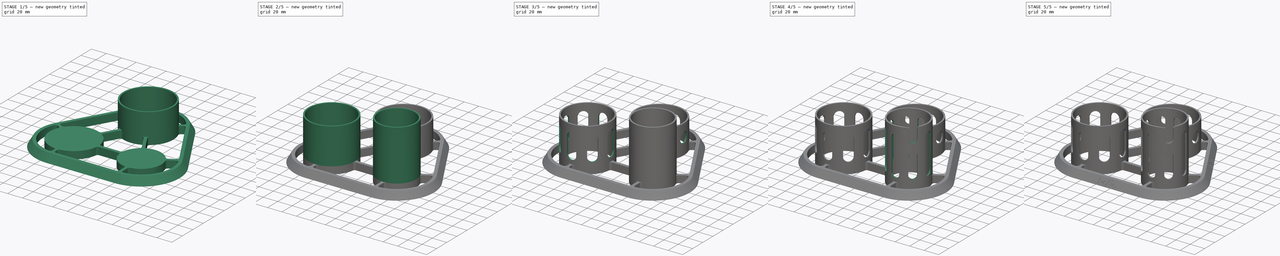
[diagram: build sequence overview — one tinted view per stage of 5, left to right]
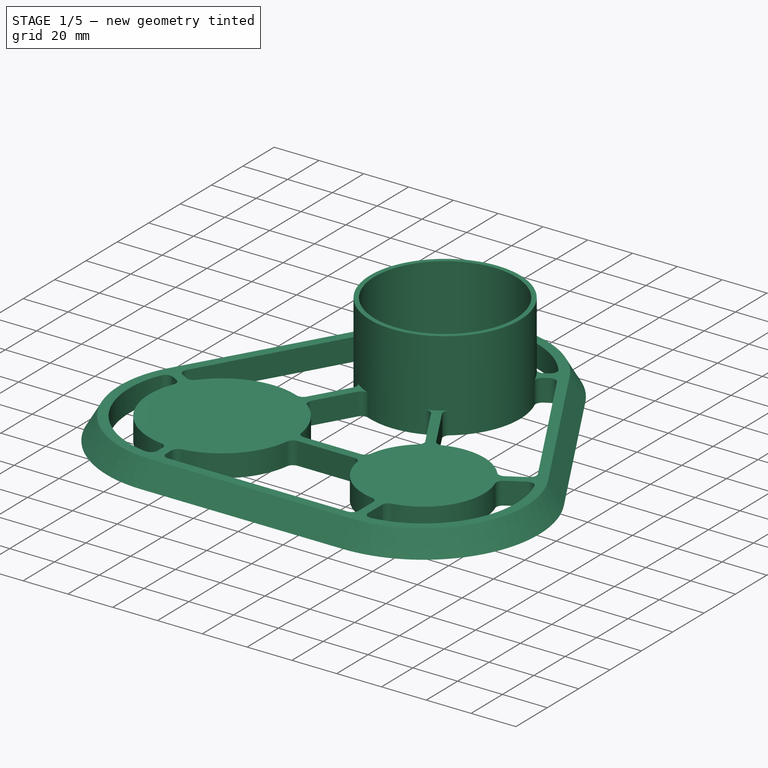
[diagram: stage 1 of 5 — iso view after this stage's code; geometry added in this stage tinted green]
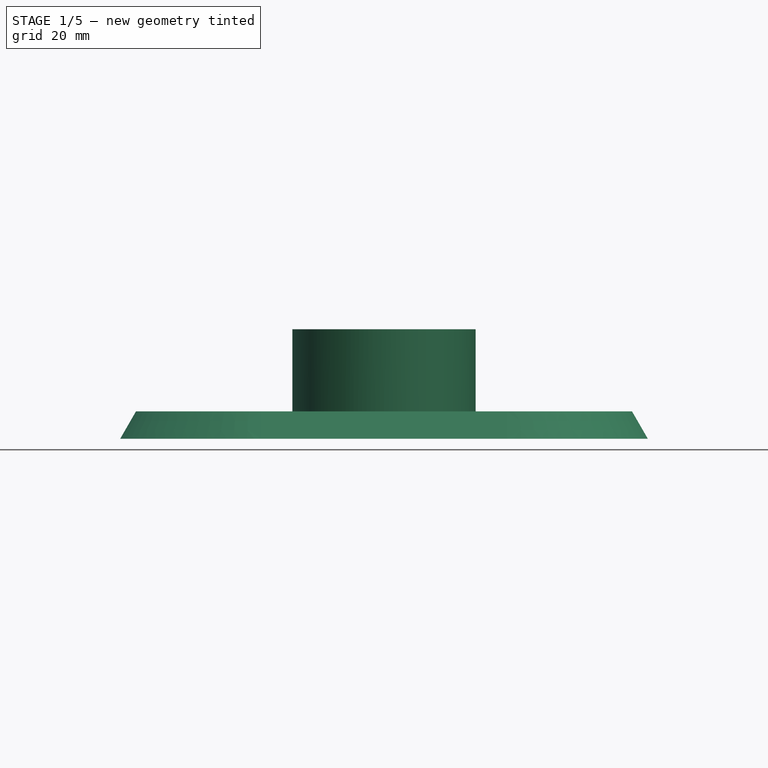
[diagram: stage 1 of 5 — front view after this stage's code; geometry added in this stage tinted green]
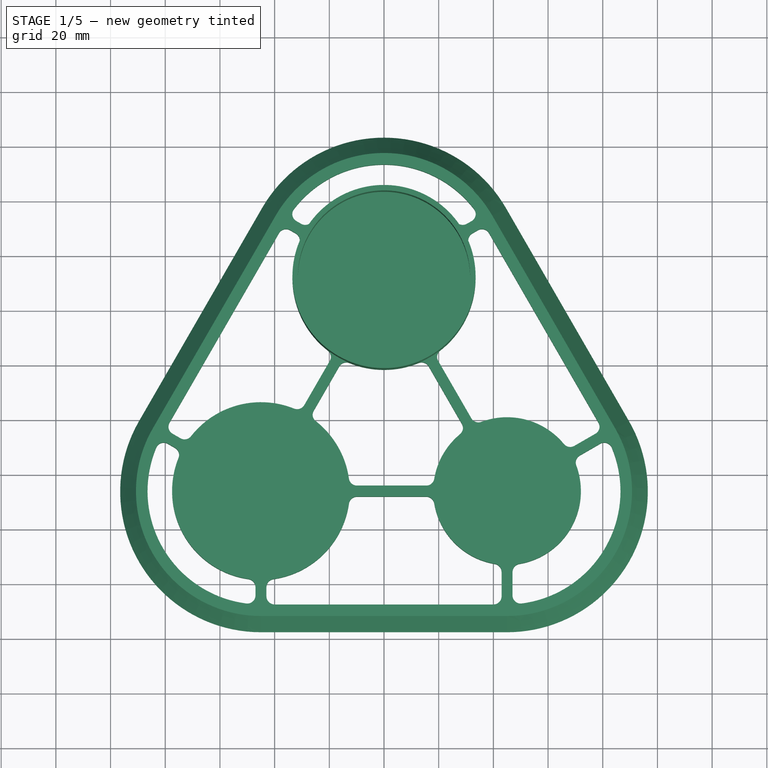
[diagram: stage 1 of 5 — top view after this stage's code; geometry added in this stage tinted green]
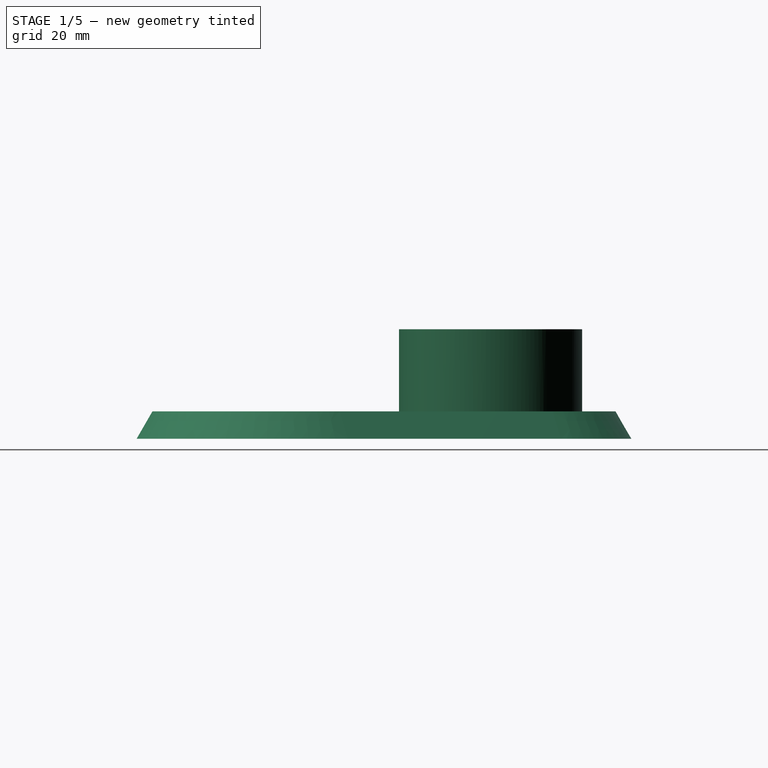
[diagram: stage 1 of 5 — right view after this stage's code; geometry added in this stage tinted green]
FCSTD DOCUMENT  (FreeCAD 1.0R38806 (Git))
Label: pado base 5
License: All rights reserved
LicenseURL: http://en.wikipedia.org/wiki/All_rights_reserved
objects: Sketcher::SketchObject×14, PartDesign::Pocket×7, Part::Part2DObjectPython×5, PartDesign::Pad×4, PartDesign::PolarPattern×4, PartDesign::SubShapeBinder×3, App::VarSet×1, PartDesign::SubtractivePipe×1, PartDesign::Body×1
note: 81 computed .brp shape members not serialized (recipe doc carries the construction recipe); baked Part::Feature solids carry a one-line shape summary decoded from their .brp

FEATURE [App::VarSet] VarSet
  BaseHeight = 10
  HoleMarginBottom = 5
  HoleMarginTop = 10
  Offset = -2
  WallThickness = 2
  h1 = 40
  h2 = 60
  h3 = 80
FEATURE [Sketcher::SketchObject] Sketch
  ArcFitTolerance = 1e-06
  AttachmentSupport = -> [XY_Plane001]
  FullyConstrained = true
  MakeInternals = false
  MapMode = 5
  sketch-geometry (11):
    g0: LineSegment [constr] StartX=0 StartY=51.9615 StartZ=0 EndX=-45 EndY=-25.9808 EndZ=0
    g1: LineSegment [constr] StartX=-45 StartY=-25.9808 StartZ=0 EndX=45 EndY=-25.9808 EndZ=0
    g2: LineSegment [constr] StartX=45 StartY=-25.9808 StartZ=0 EndX=0 EndY=51.9615 EndZ=0
    g3: LineSegment [constr] StartX=0 StartY=0 StartZ=0 EndX=-45 EndY=-25.9808 EndZ=0
    g4: LineSegment [constr] StartX=0 StartY=0 StartZ=0 EndX=0 EndY=51.9615 EndZ=0
    g5: Circle CenterX=0 CenterY=51.9615 CenterZ=0 NormalX=0 NormalY=0 NormalZ=1 AngleXU=0 Radius=41
    g6: Circle CenterX=-45 CenterY=-25.9808 CenterZ=0 NormalX=0 NormalY=0 NormalZ=1 AngleXU=0 Radius=35.5
    g7: Circle CenterX=45 CenterY=-25.9808 CenterZ=0 NormalX=0 NormalY=0 NormalZ=1 AngleXU=0 Radius=33.75
    g8: Circle CenterX=0 CenterY=51.9615 CenterZ=0 NormalX=0 NormalY=0 NormalZ=1 AngleXU=0 Radius=35.5
    g9: Circle CenterX=-45 CenterY=-25.9808 CenterZ=0 NormalX=0 NormalY=0 NormalZ=1 AngleXU=0 Radius=34.5
    g10: Circle CenterX=45 CenterY=-25.9808 CenterZ=0 NormalX=0 NormalY=0 NormalZ=1 AngleXU=0 Radius=29
  constraints (25):
    c: PointOnObject(g0,g-2)
    c: Coincident(g0,g1)
    c: Horizontal(g1)
    c: Coincident(g1,g2)
    c: Coincident(g2,g0)
    c: Equal(g0,g2)
    c: Equal(g2,g1)
    c: Coincident(g3,g0)
    c: Coincident(g4,g3)
    c: Coincident(g4,g0)
    c: Coincident(g3,g-1)
    c: Equal(g3,g4)
    c: Diameter(g5) = 82
    c: Coincident(g5,g0)
    c: Diameter(g6) = 71
    c: Coincident(g6,g0)
    c: Diameter(g7) = 67.5
    c: Coincident(g7,g1)
    c: Distance(g2,g2) = 90
    c: Diameter(g8) = 71
    c: Coincident(g8,g0)
    c: Diameter(g9) = 69
    c: Coincident(g9,g0)
    c: Diameter(g10) = 58
    c: Coincident(g10,g1)
FEATURE [Sketcher::SketchObject] Sketch002
  ArcFitTolerance = 1e-06
  AttachmentSupport = -> [XY_Plane001]
  ExternalGeometry = -> [Sketch]
  FullyConstrained = true
  MakeInternals = false
  MapMode = 5
  sketch-geometry (7):
    g0: LineSegment StartX=89.1673 StartY=-0.480762 StartZ=0 EndX=44.1673 EndY=77.4615 EndZ=0
    g1: LineSegment StartX=-44.1673 StartY=77.4615 StartZ=0 EndX=-89.1673 EndY=-0.480762 EndZ=0
    g2: LineSegment StartX=-45 StartY=-76.9808 StartZ=0 EndX=45 EndY=-76.9808 EndZ=0
    g3: ArcOfCircle CenterX=0 CenterY=51.9615 CenterZ=0 NormalX=0 NormalY=0 NormalZ=1 AngleXU=0 Radius=51 StartAngle=0.523599 EndAngle=2.61799
    g4: ArcOfCircle CenterX=-45 CenterY=-25.9808 CenterZ=0 NormalX=0 NormalY=0 NormalZ=1 AngleXU=0 Radius=51 StartAngle=2.61799 EndAngle=4.71239
    g5: ArcOfCircle CenterX=45 CenterY=-25.9808 CenterZ=0 NormalX=0 NormalY=0 NormalZ=1 AngleXU=0 Radius=51 StartAngle=4.71239 EndAngle=6.80678
    g6: LineSegment [constr] StartX=0 StartY=51.9615 StartZ=0 EndX=35.507 EndY=72.4615 EndZ=0
  constraints (16):
    c: Tangent(g1,g3) = -1.5708
    c: Tangent(g0,g3) = -1.5708
    c: Tangent(g1,g4) = -1.5708
    c: Tangent(g2,g4) = -1.5708
    c: Tangent(g2,g5) = -1.5708
    c: Tangent(g0,g5) = -1.5708
    c: Equal(g1,g0)
    c: Equal(g0,g2)
    c: Equal(g3,g4)
    c: Equal(g4,g5)
    c: Coincident(g3,g-3)
    c: Coincident(g4,g-4)
    c: Coincident(g6,g3)
    c: PointOnObject(g6,g-3)
    c: PointOnObject(g0,g6)
    c: Distance(g6,g0) = 10
FEATURE [PartDesign::SubShapeBinder] Binder
  BindCopyOnChange = 0
  BindMode = 0
  ClaimChildren = false
  Context = -> Body [Binder.]
  Fuse = false
  MakeFace = true
  Offset = -2
  OffsetFill = false
  OffsetIntersection = false
  OffsetJoinType = 0
  OffsetOpenResult = false
  PartialLoad = false
  Relative = true
  Support = -> [Sketch[Edge4]]
  _Version = 2
  expr: Offset = VarSet.Offset
FEATURE [PartDesign::SubShapeBinder] Binder001
  BindCopyOnChange = 0
  BindMode = 0
  ClaimChildren = false
  Context = -> Body [Binder001.]
  Fuse = false
  MakeFace = true
  Offset = -2
  OffsetFill = false
  OffsetIntersection = false
  OffsetJoinType = 0
  OffsetOpenResult = false
  PartialLoad = false
  Relative = true
  Support = -> [Sketch[Edge5]]
  _Version = 2
  expr: Offset = VarSet.Offset
FEATURE [PartDesign::SubShapeBinder] Binder002
  BindCopyOnChange = 0
  BindMode = 0
  ClaimChildren = false
  Context = -> Body [Binder002.]
  Fuse = false
  MakeFace = true
  Offset = -2
  OffsetFill = false
  OffsetIntersection = false
  OffsetJoinType = 0
  OffsetOpenResult = false
  PartialLoad = false
  Relative = true
  Support = -> [Sketch[Edge6]]
  _Version = 2
  expr: Offset = VarSet.Offset
FEATURE [Sketcher::SketchObject] Sketch004
  ArcFitTolerance = 1e-06
  AttachmentSupport = -> [XY_Plane001]
  ExternalGeometry = -> [Binder]
  FullyConstrained = true
  MakeInternals = false
  MapMode = 5
  expr: Constraints[7] = VarSet.WallThickness
  sketch-geometry (3):
    g0: Circle CenterX=0 CenterY=51.9615 CenterZ=0 NormalX=0 NormalY=0 NormalZ=1 AngleXU=0 Radius=33.5
    g1: Circle CenterX=0 CenterY=51.9615 CenterZ=0 NormalX=0 NormalY=0 NormalZ=1 AngleXU=0 Radius=31.5
    g2: LineSegment [constr] StartX=31.5 StartY=51.9615 StartZ=0 EndX=33.5 EndY=51.9615 EndZ=0
  constraints (8):
    c: Coincident(g0,g-3)
    c: Equal(g0,g-3)
    c: Coincident(g1,g0)
    c: PointOnObject(g2,g1)
    c: PointOnObject(g2,g0)
    c: Horizontal(g2)
    c: PointOnObject(g0,g2)
    c: Distance(g2,g2) = 2
FEATURE [Sketcher::SketchObject] Sketch005
  ArcFitTolerance = 1e-06
  AttachmentSupport = -> [XY_Plane001]
  ExternalGeometry = -> [Binder001]
  FullyConstrained = true
  MakeInternals = false
  MapMode = 5
  expr: Constraints[7] = VarSet.WallThickness
  sketch-geometry (3):
    g0: Circle CenterX=-45 CenterY=-25.9808 CenterZ=0 NormalX=0 NormalY=0 NormalZ=1 AngleXU=0 Radius=32.5
    g1: Circle CenterX=-45 CenterY=-25.9808 CenterZ=0 NormalX=0 NormalY=0 NormalZ=1 AngleXU=0 Radius=30.5
    g2: LineSegment [constr] StartX=-14.5 StartY=-25.9808 StartZ=0 EndX=-12.5 EndY=-25.9808 EndZ=0
  constraints (8):
    c: Coincident(g0,g-3)
    c: Equal(g0,g-3)
    c: Coincident(g1,g0)
    c: PointOnObject(g2,g1)
    c: PointOnObject(g2,g0)
    c: Horizontal(g2)
    c: PointOnObject(g0,g2)
    c: Distance(g2,g2) = 2
FEATURE [Sketcher::SketchObject] Sketch006
  ArcFitTolerance = 1e-06
  AttachmentSupport = -> [XY_Plane001]
  ExternalGeometry = -> [Binder002]
  FullyConstrained = true
  MakeInternals = false
  MapMode = 5
  expr: Constraints[7] = VarSet.WallThickness
  sketch-geometry (3):
    g0: Circle CenterX=45 CenterY=-25.9808 CenterZ=0 NormalX=0 NormalY=0 NormalZ=1 AngleXU=0 Radius=27
    g1: Circle CenterX=45 CenterY=-25.9808 CenterZ=0 NormalX=0 NormalY=0 NormalZ=1 AngleXU=0 Radius=25
    g2: LineSegment [constr] StartX=70 StartY=-25.9808 StartZ=0 EndX=72 EndY=-25.9808 EndZ=0
  constraints (8):
    c: Coincident(g0,g-3)
    c: Equal(g0,g-3)
    c: Coincident(g1,g0)
    c: PointOnObject(g2,g1)
    c: PointOnObject(g2,g0)
    c: Horizontal(g2)
    c: PointOnObject(g0,g2)
    c: Distance(g2,g2) = 2
FEATURE [Sketcher::SketchObject] Sketch014
  ArcFitTolerance = 1e-06
  FullyConstrained = true
  MakeInternals = false
  MapMode = 5
  sketch-geometry (27):
    g0: Circle CenterX=-13.5 CenterY=0 CenterZ=0 NormalX=0 NormalY=0 NormalZ=1 AngleXU=0 Radius=2.5
    g1: ArcOfCircle CenterX=-13.5 CenterY=0 CenterZ=0 NormalX=0 NormalY=0 NormalZ=1 AngleXU=0 Radius=4 StartAngle=4.03726 EndAngle=9.42478
    g2: LineSegment StartX=-17.5 StartY=1.5e-15 StartZ=0 EndX=-17.5 EndY=-6.5 EndZ=0
    g3: LineSegment StartX=-17.5 StartY=-6.5 StartZ=0 EndX=-16 EndY=-6.5 EndZ=0
    g4: LineSegment StartX=-16 StartY=-6.5 StartZ=0 EndX=-16 EndY=-3.1225 EndZ=0
    g5: Circle CenterX=-4.5 CenterY=-2.5 CenterZ=0 NormalX=0 NormalY=0 NormalZ=1 AngleXU=0 Radius=2.5
    g6: ArcOfCircle CenterX=-4.5 CenterY=-2.5 CenterZ=0 NormalX=0 NormalY=0 NormalZ=1 AngleXU=0 Radius=4 StartAngle=0.195826 EndAngle=5.58335
    g7: LineSegment StartX=-0.576451 StartY=-1.72169 StartZ=0 EndX=0.2505 EndY=-5.89046 EndZ=0
    g8: LineSegment StartX=0.2505 StartY=-5.89046 StartZ=0 EndX=-1.22083 EndY=-6.18233 EndZ=0
    g9: LineSegment StartX=-1.22083 StartY=-6.18233 StartZ=0 EndX=-1.44022 EndY=-5.07638 EndZ=0
    g10: Circle CenterX=4.5 CenterY=1.23957e-07 CenterZ=0 NormalX=0 NormalY=0 NormalZ=1 AngleXU=0 Radius=2.5
    g11: ArcOfCircle CenterX=4.5 CenterY=1.23957e-07 CenterZ=0 NormalX=0 NormalY=0 NormalZ=1 AngleXU=0 Radius=4 StartAngle=0.895665 EndAngle=6.28319
    g12: LineSegment StartX=8.5 StartY=6.5 StartZ=0 EndX=8.5 EndY=1.23957e-07 EndZ=0
    g13: LineSegment StartX=8.5 StartY=6.5 StartZ=0 EndX=7 EndY=6.5 EndZ=0
    g14: LineSegment StartX=7 StartY=6.5 StartZ=0 EndX=7 EndY=3.1225 EndZ=0
    g15: Circle CenterX=13.5 CenterY=-2.5 CenterZ=0 NormalX=0 NormalY=0 NormalZ=1 AngleXU=0 Radius=2.5
    g16: Circle CenterX=13.5 CenterY=-2.5 CenterZ=0 NormalX=0 NormalY=0 NormalZ=1 AngleXU=0 Radius=4
    g17: LineSegment [constr] StartX=-13.5 StartY=0 StartZ=0 EndX=-4.5 EndY=0 EndZ=0
    g18: LineSegment [constr] StartX=-4.5 StartY=0 StartZ=0 EndX=4.5 EndY=1.23957e-07 EndZ=0
    g19: LineSegment [constr] StartX=-4.5 StartY=-2.5 StartZ=0 EndX=4.5 EndY=-2.5 EndZ=0
    g20: LineSegment [constr] StartX=4.5 StartY=-2.5 StartZ=0 EndX=13.5 EndY=-2.5 EndZ=0
    g21: LineSegment [constr] StartX=-4.5 StartY=-2.5 StartZ=0 EndX=-4.5 EndY=0 EndZ=0
    g22: LineSegment [constr] StartX=4.5 StartY=1.23957e-07 StartZ=0 EndX=4.5 EndY=-2.5 EndZ=0
    g23: LineSegment [constr] StartX=-4.5 StartY=0 StartZ=0 EndX=-4.5 EndY=6.5 EndZ=0
    g24: LineSegment [constr] StartX=-4.5 StartY=6.5 StartZ=0 EndX=0 EndY=6.5 EndZ=0
    g25: LineSegment [constr] StartX=0 StartY=6.5 StartZ=0 EndX=4.5 EndY=6.5 EndZ=0
    g26: LineSegment [constr] StartX=4.5 StartY=6.5 StartZ=0 EndX=4.5 EndY=1.23957e-07 EndZ=0
  constraints (74):
    c: Diameter(g0) = 5
    c: Diameter(g1) = 8
    c: Coincident(g1,g0)
    c: Vertical(g2)
    c: Coincident(g3,g2)
    c: Horizontal(g3)
    c: Coincident(g4,g3)
    c: Vertical(g4)
    c: DistanceY(g2,g2) = 6.5
    c: DistanceX(g3,g3) = 1.5
    c: Tangent(g1,g2) = -1.5708
    c: Coincident(g1,g4)
    c: Coincident(g6,g5)
    c: Coincident(g8,g7)
    c: Coincident(g9,g8)
    c: Perpendicular(g8,g7)
    c: Perpendicular(g8,g9)
    c: Distance(g7,g7) = 4.25
    c: Distance(g8,g8) = 1.5
    c: Angle(g-2,g7) = 0.195826
    c: Coincident(g11,g10)
    c: Coincident(g6,g9)
    c: Tangent(g6,g7) = 1.5708
    c: Vertical(g12)
    c: Coincident(g13,g12)
    c: Horizontal(g13)
    c: Coincident(g14,g13)
    c: Vertical(g14)
    c: DistanceY(g12,g12) = 6.5
    c: Tangent(g11,g12) = 1.5708
    c: Coincident(g11,g14)
    c: Coincident(g16,g15)
    c: Distance(g2,g-1) = 6.5
    c: Distance(g12,g-1) = 6.5
    c: Equal(g0,g5)
    c: Equal(g5,g10)
    c: Equal(g10,g15)
    c: Equal(g1,g6)
    c: Equal(g6,g11)
    c: Equal(g11,g16)
    c: DistanceY(g5,g0) = 2.5
    c: Coincident(g17,g0)
    c: Coincident(g18,g10)
    c: Coincident(g19,g5)
    c: Coincident(g20,g15)
    c: PointOnObject(g0,g-1)
    c: Coincident(g17,g18)
    c: Tangent(g17,g5)
    c: Tangent(g18,g5)
    c: Equal(g17,g18)
    c: Coincident(g19,g20)
    c: Tangent(g19,g10)
    c: Tangent(g20,g10)
    c: Equal(g19,g20)
    c: Coincident(g21,g5)
    c: Coincident(g21,g17)
    c: Vertical(g21)
    c: Perpendicular(g20,g22)
    c: Coincident(g22,g19)
    c: Coincident(g22,g10)
    c: DistanceX(g17,g17) = 9
    c: Equal(g13,g3)
    c: Coincident(g17,g23)
    c: Vertical(g23)
    c: Coincident(g23,g24)
    c: PointOnObject(g24,g-2)
    c: Horizontal(g24)
    c: Coincident(g24,g25)
    c: Horizontal(g25)
    c: Coincident(g25,g26)
    c: Coincident(g26,g10)
    c: Equal(g24,g25)
    c: Vertical(g26)
    c: PointOnObject(g24,g13)
FEATURE [Sketcher::SketchObject] Sketch026
  ArcFitTolerance = 1e-06
  AttachmentSupport = -> [XY_Plane001]
  ExternalGeometry = -> [Binder]
  FullyConstrained = true
  MakeInternals = false
  MapMode = 5
  expr: Constraints[62] = VarSet.BaseHeight + VarSet.HoleMarginBottom
  expr: Constraints[65] = VarSet.h1 - VarSet.HoleMarginTop - VarSet.HoleMarginBottom - VarSet.BaseHeight
  sketch-geometry (24):
    g0: LineSegment [constr] StartX=6.53553 StartY=19.1052 StartZ=0 EndX=18.6116 EndY=24.1073 EndZ=0
    g1: LineSegment [constr] StartX=18.6116 StartY=24.1073 StartZ=0 EndX=27.8542 EndY=33.3499 EndZ=0
    g2: LineSegment [constr] StartX=27.8542 StartY=33.3499 StartZ=0 EndX=32.8563 EndY=45.426 EndZ=0
    g3: LineSegment [constr] StartX=32.8563 StartY=45.426 StartZ=0 EndX=32.8563 EndY=58.4971 EndZ=0
    g4: LineSegment [constr] StartX=32.8563 StartY=58.4971 StartZ=0 EndX=27.8542 EndY=70.5731 EndZ=0
    g5: LineSegment [constr] StartX=27.8542 StartY=70.5731 StartZ=0 EndX=18.6116 EndY=79.8158 EndZ=0
    g6: LineSegment [constr] StartX=18.6116 StartY=79.8158 StartZ=0 EndX=6.53553 EndY=84.8178 EndZ=0
    g7: LineSegment [constr] StartX=6.53553 StartY=84.8178 StartZ=0 EndX=-6.53553 EndY=84.8178 EndZ=0
    g8: LineSegment [constr] StartX=-6.53553 StartY=84.8178 StartZ=0 EndX=-18.6116 EndY=79.8158 EndZ=0
    g9: LineSegment [constr] StartX=-18.6116 StartY=79.8158 StartZ=0 EndX=-27.8542 EndY=70.5731 EndZ=0
    g10: LineSegment [constr] StartX=-27.8542 StartY=70.5731 StartZ=0 EndX=-32.8563 EndY=58.4971 EndZ=0
    g11: LineSegment [constr] StartX=-32.8563 StartY=58.4971 StartZ=0 EndX=-32.8563 EndY=45.426 EndZ=0
    g12: LineSegment [constr] StartX=-32.8563 StartY=45.426 StartZ=0 EndX=-27.8542 EndY=33.3499 EndZ=0
    g13: LineSegment [constr] StartX=-27.8542 StartY=33.3499 StartZ=0 EndX=-18.6116 EndY=24.1073 EndZ=0
    g14: LineSegment [constr] StartX=-18.6116 StartY=24.1073 StartZ=0 EndX=-6.53553 EndY=19.1052 EndZ=0
    g15: LineSegment [constr] StartX=-6.53553 StartY=19.1052 StartZ=0 EndX=6.53553 EndY=19.1052 EndZ=0
    g16: Circle [constr] CenterX=0 CenterY=51.9615 CenterZ=0 NormalX=0 NormalY=0 NormalZ=1 AngleXU=0 Radius=33.5
    g17: ArcOfCircle CenterX=0 CenterY=23.4645 CenterZ=0 NormalX=0 NormalY=0 NormalZ=1 AngleXU=0 Radius=6.53553 StartAngle=2.01e-14 EndAngle=3.14159
    g18: ArcOfCircle CenterX=4e-16 CenterY=21.5355 CenterZ=0 NormalX=0 NormalY=0 NormalZ=1 AngleXU=0 Radius=6.53553 StartAngle=3.14159 EndAngle=6.28319
    g19: LineSegment StartX=6.53553 StartY=23.4645 StartZ=0 EndX=6.53553 EndY=21.5355 EndZ=0
    g20: LineSegment StartX=-6.53553 StartY=23.4645 StartZ=0 EndX=-6.53553 EndY=21.5355 EndZ=0
    g21: LineSegment [constr] StartX=-6.53553 StartY=21.5355 StartZ=0 EndX=6.53553 EndY=21.5355 EndZ=0
    g22: GeomPoint X=0 Y=15 Z=0
    g23: GeomPoint X=0 Y=30 Z=0
  constraints (52):
    c: Coincident(g0,g1)
    c: Coincident(g1,g2)
    c: Coincident(g2,g3)
    c: Coincident(g3,g4)
    c: Coincident(g4,g5)
    c: Coincident(g5,g6)
    c: Coincident(g6,g7)
    c: Coincident(g7,g8)
    c: Coincident(g8,g9)
    c: Coincident(g9,g10)
    c: Coincident(g10,g11)
    c: Coincident(g11,g12)
    c: Coincident(g12,g13)
    c: Coincident(g13,g14)
    c: Coincident(g14,g15)
    c: Coincident(g15,g0)
    c: Equal(g0, g1-g15) x15
    c: PointOnObject(g0,g16)
    c: PointOnObject(g1,g16)
    c: PointOnObject(g2,g16)
    c: PointOnObject(g3,g16)
    c: PointOnObject(g4,g16)
    c: PointOnObject(g5,g16)
    c: PointOnObject(g6,g16)
    c: PointOnObject(g7,g16)
    c: PointOnObject(g8,g16)
    c: PointOnObject(g9,g16)
    c: PointOnObject(g10,g16)
    c: PointOnObject(g11,g16)
    c: PointOnObject(g12,g16)
    c: PointOnObject(g13,g16)
    c: PointOnObject(g14,g16)
    c: PointOnObject(g15,g16)
    c: Coincident(g16,g-3)
    c: PointOnObject(g15,g-3)
    c: Horizontal(g15)
    c: Tangent(g17,g19) = 1.5708
    c: Tangent(g17,g20) = -1.5708
    c: Tangent(g18,g19) = 1.5708
    c: Tangent(g18,g20) = -1.5708
    c: Equal(g17,g18)
    c: Vertical(g20)
    c: PointOnObject(g17,g-2)
    c: Coincident(g21,g18)
    c: Coincident(g21,g18)
    c: Equal(g21,g15)
    c: PointOnObject(g22,g18)
    c: PointOnObject(g22,g-2)
    c: DistanceY(g-1,g22) = 15
    c: PointOnObject(g23,g17)
    c: PointOnObject(g23,g-2)
    c: DistanceY(g22,g23) = 15
FEATURE [Sketcher::SketchObject] Sketch027
  ArcFitTolerance = 1e-06
  AttachmentSupport = -> [XY_Plane001]
  ExternalGeometry = -> [Binder001]
  FullyConstrained = true
  MakeInternals = false
  MapMode = 5
  expr: Constraints[64] = VarSet.BaseHeight + VarSet.HoleMarginBottom
  expr: Constraints[65] = VarSet.h2 - VarSet.BaseHeight - VarSet.HoleMarginBottom - VarSet.HoleMarginTop
  sketch-geometry (24):
    g0: LineSegment [constr] StartX=-38.6596 StartY=-57.8563 StartZ=0 EndX=-26.944 EndY=-53.0035 EndZ=0
    g1: LineSegment [constr] StartX=-26.944 StartY=-53.0035 StartZ=0 EndX=-17.9772 EndY=-44.0368 EndZ=0
    g2: LineSegment [constr] StartX=-17.9772 StartY=-44.0368 StartZ=0 EndX=-13.1245 EndY=-32.3212 EndZ=0
    g3: LineSegment [constr] StartX=-13.1245 StartY=-32.3212 StartZ=0 EndX=-13.1245 EndY=-19.6403 EndZ=0
    g4: LineSegment [constr] StartX=-13.1245 StartY=-19.6403 StartZ=0 EndX=-17.9772 EndY=-7.92473 EndZ=0
    g5: LineSegment [constr] StartX=-17.9772 StartY=-7.92473 StartZ=0 EndX=-26.944 EndY=1.042 EndZ=0
    g6: LineSegment [constr] StartX=-26.944 StartY=1.042 StartZ=0 EndX=-38.6596 EndY=5.89476 EndZ=0
    g7: LineSegment [constr] StartX=-38.6596 StartY=5.89476 StartZ=0 EndX=-51.3404 EndY=5.89476 EndZ=0
    g8: LineSegment [constr] StartX=-51.3404 StartY=5.89476 StartZ=0 EndX=-63.056 EndY=1.042 EndZ=0
    g9: LineSegment [constr] StartX=-63.056 StartY=1.042 StartZ=0 EndX=-72.0228 EndY=-7.92473 EndZ=0
    g10: LineSegment [constr] StartX=-72.0228 StartY=-7.92473 StartZ=0 EndX=-76.8755 EndY=-19.6403 EndZ=0
    g11: LineSegment [constr] StartX=-76.8755 StartY=-19.6403 StartZ=0 EndX=-76.8755 EndY=-32.3212 EndZ=0
    g12: LineSegment [constr] StartX=-76.8755 StartY=-32.3212 StartZ=0 EndX=-72.0228 EndY=-44.0368 EndZ=0
    g13: LineSegment [constr] StartX=-72.0228 StartY=-44.0368 StartZ=0 EndX=-63.056 EndY=-53.0035 EndZ=0
    g14: LineSegment [constr] StartX=-63.056 StartY=-53.0035 StartZ=0 EndX=-51.3404 EndY=-57.8563 EndZ=0
    g15: LineSegment [constr] StartX=-51.3404 StartY=-57.8563 StartZ=0 EndX=-38.6596 EndY=-57.8563 EndZ=0
    g16: Circle [constr] CenterX=-45 CenterY=-25.9808 CenterZ=0 NormalX=0 NormalY=0 NormalZ=1 AngleXU=0 Radius=32.5
    g17: ArcOfCircle CenterX=0 CenterY=43.6596 CenterZ=0 NormalX=0 NormalY=0 NormalZ=1 AngleXU=0 Radius=6.34044 StartAngle=7e-16 EndAngle=3.14159
    g18: ArcOfCircle CenterX=0 CenterY=21.3404 CenterZ=0 NormalX=0 NormalY=0 NormalZ=1 AngleXU=0 Radius=6.34044 StartAngle=3.14159 EndAngle=6.28319
    g19: LineSegment StartX=6.34044 StartY=43.6596 StartZ=0 EndX=6.34044 EndY=21.3404 EndZ=0
    g20: LineSegment StartX=-6.34044 StartY=43.6596 StartZ=0 EndX=-6.34044 EndY=21.3404 EndZ=0
    g21: GeomPoint X=0 Y=50 Z=0
    g22: GeomPoint X=0 Y=15 Z=0
    g23: LineSegment [constr] StartX=-6.34044 StartY=21.3404 StartZ=0 EndX=6.34044 EndY=21.3404 EndZ=0
  constraints (52):
    c: Coincident(g0,g1)
    c: Coincident(g1,g2)
    c: Coincident(g2,g3)
    c: Coincident(g3,g4)
    c: Coincident(g4,g5)
    c: Coincident(g5,g6)
    c: Coincident(g6,g7)
    c: Coincident(g7,g8)
    c: Coincident(g8,g9)
    c: Coincident(g9,g10)
    c: Coincident(g10,g11)
    c: Coincident(g11,g12)
    c: Coincident(g12,g13)
    c: Coincident(g13,g14)
    c: Coincident(g14,g15)
    c: Coincident(g15,g0)
    c: Equal(g0, g1-g15) x15
    c: PointOnObject(g0,g16)
    c: PointOnObject(g1,g16)
    c: PointOnObject(g2,g16)
    c: PointOnObject(g3,g16)
    c: PointOnObject(g4,g16)
    c: PointOnObject(g5,g16)
    c: PointOnObject(g6,g16)
    c: PointOnObject(g7,g16)
    c: PointOnObject(g8,g16)
    c: PointOnObject(g9,g16)
    c: PointOnObject(g10,g16)
    c: PointOnObject(g11,g16)
    c: PointOnObject(g12,g16)
    c: PointOnObject(g13,g16)
    c: PointOnObject(g14,g16)
    c: PointOnObject(g15,g16)
    c: Coincident(g16,g-3)
    c: PointOnObject(g15,g-3)
    c: Horizontal(g15)
    c: Tangent(g17,g19) = 1.5708
    c: Tangent(g17,g20) = -1.5708
    c: Tangent(g18,g19) = 1.5708
    c: Tangent(g18,g20) = -1.5708
    c: Equal(g17,g18)
    c: PointOnObject(g17,g-2)
    c: PointOnObject(g18,g-2)
    c: PointOnObject(g21,g17)
    c: PointOnObject(g22,g18)
    c: PointOnObject(g22,g-2)
    c: PointOnObject(g21,g-2)
    c: Coincident(g23,g18)
    c: Coincident(g23,g18)
    c: Equal(g23,g15)
    c: Distance(g22,g-1) = 15
    c: DistanceY(g22,g21) = 35
FEATURE [Part::Part2DObjectPython] Clone2D008  label="Sketch027 (2D)"  # Draft 2D object (typed FeaturePython)
  AttachmentSupport = -> [Binder001,Z_Axis001,X_Axis001]
  Fuse = false
  MapMode = 51
  Objects = -> [Sketch027]
  Placement = pos=(-12.5,-25.9808,0) rot=(0.57735,0.57735,0.57735;2.0944rad)
  Scale = (1,1,1)
FEATURE [Sketcher::SketchObject] Sketch028
  ArcFitTolerance = 1e-06
  AttachmentSupport = -> [XY_Plane001]
  ExternalGeometry = -> [Binder002]
  FullyConstrained = true
  MakeInternals = false
  MapMode = 5
  expr: Constraints[64] = VarSet.BaseHeight + VarSet.HoleMarginBottom
  expr: Constraints[65] = VarSet.h3 - VarSet.HoleMarginTop
  sketch-geometry (24):
    g0: LineSegment [constr] StartX=60.0004 StartY=-48.4304 StartZ=0 EndX=67.4497 EndY=-40.9812 EndZ=0
    g1: LineSegment [constr] StartX=67.4497 StartY=-40.9812 StartZ=0 EndX=71.4812 EndY=-31.2482 EndZ=0
    g2: LineSegment [constr] StartX=71.4812 StartY=-31.2482 StartZ=0 EndX=71.4812 EndY=-20.7133 EndZ=0
    g3: LineSegment [constr] StartX=71.4812 StartY=-20.7133 StartZ=0 EndX=67.4497 EndY=-10.9804 EndZ=0
    g4: LineSegment [constr] StartX=67.4497 StartY=-10.9804 StartZ=0 EndX=60.0004 EndY=-3.53108 EndZ=0
    g5: LineSegment [constr] StartX=60.0004 StartY=-3.53108 StartZ=0 EndX=50.2674 EndY=0.50044 EndZ=0
    g6: LineSegment [constr] StartX=50.2674 StartY=0.50044 StartZ=0 EndX=39.7326 EndY=0.50044 EndZ=0
    g7: LineSegment [constr] StartX=39.7326 StartY=0.50044 StartZ=0 EndX=29.9996 EndY=-3.53108 EndZ=0
    g8: LineSegment [constr] StartX=29.9996 StartY=-3.53108 StartZ=0 EndX=22.5503 EndY=-10.9804 EndZ=0
    g9: LineSegment [constr] StartX=22.5503 StartY=-10.9804 StartZ=0 EndX=18.5188 EndY=-20.7133 EndZ=0
    g10: LineSegment [constr] StartX=18.5188 StartY=-20.7133 StartZ=0 EndX=18.5188 EndY=-31.2482 EndZ=0
    g11: LineSegment [constr] StartX=18.5188 StartY=-31.2482 StartZ=0 EndX=22.5503 EndY=-40.9812 EndZ=0
    g12: LineSegment [constr] StartX=22.5503 StartY=-40.9812 StartZ=0 EndX=29.9996 EndY=-48.4304 EndZ=0
    g13: LineSegment [constr] StartX=29.9996 StartY=-48.4304 StartZ=0 EndX=39.7326 EndY=-52.462 EndZ=0
    g14: LineSegment [constr] StartX=39.7326 StartY=-52.462 StartZ=0 EndX=50.2674 EndY=-52.462 EndZ=0
    g15: LineSegment [constr] StartX=50.2674 StartY=-52.462 StartZ=0 EndX=60.0004 EndY=-48.4304 EndZ=0
    g16: Circle [constr] CenterX=45 CenterY=-25.9808 CenterZ=0 NormalX=0 NormalY=0 NormalZ=1 AngleXU=0 Radius=27
    g17: ArcOfCircle CenterX=0 CenterY=64.7326 CenterZ=0 NormalX=0 NormalY=0 NormalZ=1 AngleXU=0 Radius=5.26744 StartAngle=5e-16 EndAngle=3.14159
    g18: ArcOfCircle CenterX=0 CenterY=20.2674 CenterZ=0 NormalX=0 NormalY=0 NormalZ=1 AngleXU=0 Radius=5.26744 StartAngle=3.14159 EndAngle=6.28319
    g19: LineSegment StartX=5.26744 StartY=64.7326 StartZ=0 EndX=5.26744 EndY=20.2674 EndZ=0
    g20: LineSegment StartX=-5.26744 StartY=64.7326 StartZ=0 EndX=-5.26744 EndY=20.2674 EndZ=0
    g21: LineSegment [constr] StartX=-5.26744 StartY=20.2674 StartZ=0 EndX=5.26744 EndY=20.2674 EndZ=0
    g22: GeomPoint [constr] X=0 Y=70 Z=0
    g23: GeomPoint [constr] X=0 Y=15 Z=0
  constraints (52):
    c: Coincident(g0,g1)
    c: Coincident(g1,g2)
    c: Coincident(g2,g3)
    c: Coincident(g3,g4)
    c: Coincident(g4,g5)
    c: Coincident(g5,g6)
    c: Coincident(g6,g7)
    c: Coincident(g7,g8)
    c: Coincident(g8,g9)
    c: Coincident(g9,g10)
    c: Coincident(g10,g11)
    c: Coincident(g11,g12)
    c: Coincident(g12,g13)
    c: Coincident(g13,g14)
    c: Coincident(g14,g15)
    c: Coincident(g15,g0)
    c: Equal(g0, g1-g15) x15
    c: PointOnObject(g0,g16)
    c: PointOnObject(g1,g16)
    c: PointOnObject(g2,g16)
    c: PointOnObject(g3,g16)
    c: PointOnObject(g4,g16)
    c: PointOnObject(g5,g16)
    c: PointOnObject(g6,g16)
    c: PointOnObject(g7,g16)
    c: PointOnObject(g8,g16)
    c: PointOnObject(g9,g16)
    c: PointOnObject(g10,g16)
    c: PointOnObject(g11,g16)
    c: PointOnObject(g12,g16)
    c: PointOnObject(g13,g16)
    c: PointOnObject(g14,g16)
    c: PointOnObject(g15,g16)
    c: Coincident(g16,g-3)
    c: PointOnObject(g15,g-3)
    c: Horizontal(g14)
    c: Tangent(g17,g19) = 1.5708
    c: Tangent(g17,g20) = -1.5708
    c: Tangent(g18,g19) = 1.5708
    c: Tangent(g18,g20) = -1.5708
    c: Equal(g17,g18)
    c: PointOnObject(g17,g-2)
    c: PointOnObject(g18,g-2)
    c: Coincident(g21,g18)
    c: Coincident(g21,g18)
    c: Equal(g21,g14)
    c: PointOnObject(g22,g17)
    c: PointOnObject(g23,g18)
    c: PointOnObject(g22,g-2)
    c: PointOnObject(g23,g-2)
    c: DistanceY(g-1,g23) = 15
    c: Distance(g22,g-1) = 70
FEATURE [Part::Part2DObjectPython] Clone2D009  label="Sketch028 (2D)"  # Draft 2D object (typed FeaturePython)
  AttachmentSupport = -> [Z_Axis001,X_Axis001]
  Fuse = false
  Objects = -> [Sketch028]
  Placement = pos=(74.5,-25.9808,0) rot=(0.57735,0.57735,0.57735;2.0944rad)
  Scale = (1,1,1)
FEATURE [Sketcher::SketchObject] Sketch029
  ArcFitTolerance = 1e-06
  AttachmentSupport = -> [XY_Plane001]
  ExternalGeometry = -> [Binder,Binder001,Binder002]
  FullyConstrained = true
  MakeInternals = false
  MapMode = 5
  expr: Constraints[279] = VarSet.WallThickness * 2
  sketch-geometry (113):
    g0: LineSegment [constr] StartX=-35.9246 StartY=72.7026 StartZ=0 EndX=0 EndY=51.9615 EndZ=0
    g1: LineSegment [constr] StartX=-1.7e-15 StartY=51.9615 StartZ=0 EndX=35.9246 EndY=72.7026 EndZ=0
    g2: LineSegment [constr] StartX=-45 StartY=-25.9808 StartZ=0 EndX=-80.9246 EndY=-5.2397 EndZ=0
    g3: LineSegment [constr] StartX=-45 StartY=-25.9808 StartZ=0 EndX=-45 EndY=-67.4629 EndZ=0
    g4: LineSegment [constr] StartX=45 StartY=-25.9808 StartZ=0 EndX=80.9246 EndY=-5.2397 EndZ=0
    g5: LineSegment [constr] StartX=45 StartY=-25.9808 StartZ=0 EndX=45 EndY=-67.4629 EndZ=0
    g6: LineSegment StartX=-34.3265 StartY=69.4705 StartZ=0 EndX=-32.3119 EndY=68.3074 EndZ=0
    g7: LineSegment StartX=-32.044 StartY=72.7715 StartZ=0 EndX=-30.3119 EndY=71.7715 EndZ=0
    g8: LineSegment StartX=30.3119 StartY=71.7715 StartZ=0 EndX=32.044 EndY=72.7715 EndZ=0
    g9: LineSegment StartX=32.3119 StartY=68.3074 StartZ=0 EndX=34.3265 EndY=69.4705 EndZ=0
    g10: LineSegment StartX=-77.3265 StartY=-5.00765 StartZ=0 EndX=-74.4374 EndY=-6.67565 EndZ=0
    g11: LineSegment StartX=-79.044 StartY=-8.63486 StartZ=0 EndX=-76.4374 EndY=-10.1398 EndZ=0
    g12: LineSegment [constr] StartX=-1.7e-15 StartY=51.9615 StartZ=0 EndX=-45 EndY=-25.9808 EndZ=0
    g13: LineSegment [constr] StartX=-45 StartY=-25.9808 StartZ=0 EndX=45 EndY=-25.9808 EndZ=0
    g14: LineSegment [constr] StartX=45 StartY=-25.9808 StartZ=0 EndX=0 EndY=51.9615 EndZ=0
    g15: LineSegment StartX=-29.159 StartY=5.45667 StartZ=0 EndX=-19.81 EndY=21.6496 EndZ=0
    g16: LineSegment StartX=-16.3459 StartY=19.6496 StartZ=0 EndX=-25.6949 EndY=3.45667 EndZ=0
    g17: LineSegment StartX=16.3459 StartY=19.6496 StartZ=0 EndX=28.4777 EndY=-1.36339 EndZ=0
    g18: LineSegment StartX=19.81 StartY=21.6496 StartZ=0 EndX=31.9419 EndY=0.636615 EndZ=0
    g19: LineSegment StartX=-9.85388 StartY=-23.9808 StartZ=0 EndX=15.4196 EndY=-23.9808 EndZ=0
    g20: LineSegment StartX=-9.85388 StartY=-27.9808 StartZ=0 EndX=15.4196 EndY=-27.9808 EndZ=0
    g21: LineSegment StartX=-47 StartY=-61.1269 StartZ=0 EndX=-47 EndY=-64.1367 EndZ=0
    g22: LineSegment StartX=-43 StartY=-61.1269 StartZ=0 EndX=-43 EndY=-64.4629 EndZ=0
    g23: LineSegment StartX=43 StartY=-55.5612 StartZ=0 EndX=43 EndY=-64.4629 EndZ=0
    g24: LineSegment StartX=47 StartY=-55.5612 StartZ=0 EndX=47 EndY=-64.1367 EndZ=0
    g25: LineSegment StartX=71.6174 StartY=-12.9226 StartZ=0 EndX=79.044 EndY=-8.63486 EndZ=0
    g26: LineSegment StartX=69.6174 StartY=-9.45851 StartZ=0 EndX=77.3265 EndY=-5.00765 EndZ=0
    g27: ArcOfCircle CenterX=3e-16 CenterY=51.9615 CenterZ=0 NormalX=0 NormalY=0 NormalZ=1 AngleXU=0 Radius=33.5 StartAngle=0.661017 EndAngle=2.48058
    g28: ArcOfCircle CenterX=-1.7e-15 CenterY=51.9615 CenterZ=0 NormalX=0 NormalY=0 NormalZ=1 AngleXU=0 Radius=41.4821 StartAngle=0.653898 EndAngle=2.4877
    g29: ArcOfCircle CenterX=3.2e-15 CenterY=51.9615 CenterZ=0 NormalX=0 NormalY=0 NormalZ=1 AngleXU=0 Radius=33.5 StartAngle=2.75541 EndAngle=4.05137
    g30: ArcOfCircle CenterX=6e-16 CenterY=51.9615 CenterZ=0 NormalX=0 NormalY=0 NormalZ=1 AngleXU=0 Radius=33.5 StartAngle=5.37341 EndAngle=6.66937
    g31: ArcOfCircle CenterX=-3.6e-15 CenterY=51.9615 CenterZ=0 NormalX=0 NormalY=0 NormalZ=1 AngleXU=0 Radius=33.5 StartAngle=4.32621 EndAngle=5.09857
    g32: ArcOfCircle CenterX=45 CenterY=-25.9808 CenterZ=0 NormalX=0 NormalY=0 NormalZ=1 AngleXU=0 Radius=27 StartAngle=0.691047 EndAngle=1.92695
    g33: ArcOfCircle CenterX=45 CenterY=-25.9808 CenterZ=0 NormalX=0 NormalY=0 NormalZ=1 AngleXU=0 Radius=27 StartAngle=4.87984 EndAngle=6.63934
    g34: ArcOfCircle CenterX=45 CenterY=-25.9808 CenterZ=0 NormalX=0 NormalY=0 NormalZ=1 AngleXU=0 Radius=41.4821 StartAngle=4.84269 EndAngle=6.67649
    g35: ArcOfCircle CenterX=45 CenterY=-25.9808 CenterZ=0 NormalX=0 NormalY=0 NormalZ=1 AngleXU=0 Radius=27 StartAngle=2.26184 EndAngle=2.97414
    g36: ArcOfCircle CenterX=-45 CenterY=-25.9808 CenterZ=0 NormalX=0 NormalY=0 NormalZ=1 AngleXU=0 Radius=32.5 StartAngle=0.141315 EndAngle=0.905883
    g37: ArcOfCircle CenterX=-45 CenterY=-25.9808 CenterZ=0 NormalX=0 NormalY=0 NormalZ=1 AngleXU=0 Radius=32.5 StartAngle=1.18851 EndAngle=2.47668
    g38: ArcOfCircle CenterX=-45 CenterY=-25.9808 CenterZ=0 NormalX=0 NormalY=0 NormalZ=1 AngleXU=0 Radius=32.5 StartAngle=4.8537 EndAngle=6.14187
    g39: ArcOfCircle CenterX=-45 CenterY=-25.9808 CenterZ=0 NormalX=0 NormalY=0 NormalZ=1 AngleXU=0 Radius=32.5 StartAngle=2.75931 EndAngle=4.57107
    g40: ArcOfCircle CenterX=45 CenterY=-25.9808 CenterZ=0 NormalX=0 NormalY=0 NormalZ=1 AngleXU=0 Radius=27 StartAngle=3.30904 EndAngle=4.54494
    g41: ArcOfCircle CenterX=-45 CenterY=-25.9808 CenterZ=0 NormalX=0 NormalY=0 NormalZ=1 AngleXU=0 Radius=41.4821 StartAngle=2.74829 EndAngle=4.58209
    g42: LineSegment StartX=-40 StartY=-67.4629 StartZ=0 EndX=40 EndY=-67.4629 EndZ=0
    g43: LineSegment StartX=-38.4246 StartY=68.3725 StartZ=0 EndX=-78.4246 EndY=-0.909575 EndZ=0
    g44: LineSegment StartX=38.4246 StartY=68.3725 StartZ=0 EndX=78.4246 EndY=-0.909575 EndZ=0
    g45: LineSegment [constr] StartX=-29.9601 StartY=66.9496 StartZ=0 EndX=-27.9601 EndY=70.4137 EndZ=0
    g46: LineSegment [constr] StartX=27.9601 StartY=70.4137 StartZ=0 EndX=29.9601 EndY=66.9496 EndZ=0
    g47: LineSegment [constr] StartX=-72.0925 StartY=-8.02951 StartZ=0 EndX=-74.0925 EndY=-11.4936 EndZ=0
    g48: LineSegment [constr] StartX=-47 StartY=-58.4192 StartZ=0 EndX=-43 EndY=-58.4192 EndZ=0
    g49: LineSegment [constr] StartX=-12.5616 StartY=-23.9808 StartZ=0 EndX=-12.5616 EndY=-27.9808 EndZ=0
    g50: LineSegment [constr] StartX=43 StartY=-52.9066 StartZ=0 EndX=47 EndY=-52.9066 EndZ=0
    g51: LineSegment [constr] StartX=67.3184 StartY=-10.7858 StartZ=0 EndX=69.3184 EndY=-14.2499 EndZ=0
    g52: LineSegment [constr] StartX=29.805 StartY=-3.66231 StartZ=0 EndX=33.2691 EndY=-1.66231 EndZ=0
    g53: LineSegment [constr] StartX=-18.4522 StartY=24.0014 StartZ=0 EndX=-14.9881 EndY=22.0014 EndZ=0
    g54: GeomPoint [constr] X=-28.9601 Y=68.6816 Z=0
    g55: GeomPoint [constr] X=28.9601 Y=68.6816 Z=0
    g56: GeomPoint [constr] X=-16.7201 Y=23.0014 Z=0
    g57: GeomPoint [constr] X=-73.0925 Y=-9.76156 Z=0
    g58: GeomPoint [constr] X=-45 Y=-58.4192 Z=0
    g59: GeomPoint [constr] X=-12.5616 Y=-25.9808 Z=0
    g60: GeomPoint [constr] X=45 Y=-52.9066 Z=0
    g61: GeomPoint [constr] X=68.3184 Y=-12.5179 Z=0
    g62: GeomPoint [constr] X=31.5371 Y=-2.66231 Z=0
    g63: ArcOfCircle CenterX=-30.544 CenterY=75.3696 CenterZ=0 NormalX=0 NormalY=0 NormalZ=1 AngleXU=0 Radius=3 StartAngle=2.4877 EndAngle=4.18879
    g64: ArcOfCircle CenterX=-28.8119 CenterY=74.3696 CenterZ=0 NormalX=0 NormalY=0 NormalZ=1 AngleXU=0 Radius=3 StartAngle=4.18879 EndAngle=5.62217
    g65: ArcOfCircle CenterX=30.544 CenterY=75.3696 CenterZ=0 NormalX=0 NormalY=0 NormalZ=1 AngleXU=0 Radius=3 StartAngle=5.23599 EndAngle=6.93708
    g66: ArcOfCircle CenterX=28.8119 CenterY=74.3696 CenterZ=0 NormalX=0 NormalY=0 NormalZ=1 AngleXU=0 Radius=3 StartAngle=3.80261 EndAngle=5.23599
    g67: ArcOfCircle CenterX=-35.8265 CenterY=66.8725 CenterZ=0 NormalX=0 NormalY=0 NormalZ=1 AngleXU=0 Radius=3 StartAngle=1.0472 EndAngle=2.61799
    g68: GeomPoint [constr] X=-36.9246 Y=70.9705 Z=0
    g69: ArcOfCircle CenterX=-33.8119 CenterY=65.7094 CenterZ=0 NormalX=0 NormalY=0 NormalZ=1 AngleXU=0 Radius=3 StartAngle=5.897 EndAngle=7.33038
    g70: ArcOfCircle CenterX=33.8119 CenterY=65.7094 CenterZ=0 NormalX=0 NormalY=0 NormalZ=1 AngleXU=0 Radius=3 StartAngle=2.0944 EndAngle=3.52777
    g71: ArcOfCircle CenterX=35.8265 CenterY=66.8725 CenterZ=0 NormalX=0 NormalY=0 NormalZ=1 AngleXU=0 Radius=3 StartAngle=0.523599 EndAngle=2.0944
    g72: GeomPoint [constr] X=36.9246 Y=70.9705 Z=0
    g73: ArcOfCircle CenterX=22.4081 CenterY=23.1496 CenterZ=0 NormalX=0 NormalY=0 NormalZ=1 AngleXU=0 Radius=3 StartAngle=2.23181 EndAngle=3.66519
    g74: ArcOfCircle CenterX=13.7478 CenterY=18.1496 CenterZ=0 NormalX=0 NormalY=0 NormalZ=1 AngleXU=0 Radius=3 StartAngle=0.523599 EndAngle=1.95698
    g75: ArcOfCircle CenterX=34.5399 CenterY=2.13661 CenterZ=0 NormalX=0 NormalY=0 NormalZ=1 AngleXU=0 Radius=3 StartAngle=3.66519 EndAngle=5.06854
    g76: ArcOfCircle CenterX=25.8797 CenterY=-2.86339 CenterZ=0 NormalX=0 NormalY=0 NormalZ=1 AngleXU=0 Radius=3 StartAngle=5.40344 EndAngle=6.80678
    g77: ArcOfCircle CenterX=-22.4081 CenterY=23.1496 CenterZ=0 NormalX=0 NormalY=0 NormalZ=1 AngleXU=0 Radius=3 StartAngle=5.75959 EndAngle=7.19296
    g78: ArcOfCircle CenterX=-13.7478 CenterY=18.1496 CenterZ=0 NormalX=0 NormalY=0 NormalZ=1 AngleXU=0 Radius=3 StartAngle=1.18462 EndAngle=2.61799
    g79: ArcOfCircle CenterX=-31.7571 CenterY=6.95667 CenterZ=0 NormalX=0 NormalY=0 NormalZ=1 AngleXU=0 Radius=3 StartAngle=4.33011 EndAngle=5.75959
    g80: ArcOfCircle CenterX=-23.0968 CenterY=1.95667 CenterZ=0 NormalX=0 NormalY=0 NormalZ=1 AngleXU=0 Radius=3 StartAngle=2.61799 EndAngle=4.04748
    g81: ArcOfCircle CenterX=-9.85388 CenterY=-20.9808 CenterZ=0 NormalX=0 NormalY=0 NormalZ=1 AngleXU=0 Radius=3 StartAngle=3.28291 EndAngle=4.71239
    g82: ArcOfCircle CenterX=-9.85388 CenterY=-30.9808 CenterZ=0 NormalX=0 NormalY=0 NormalZ=1 AngleXU=0 Radius=3 StartAngle=1.5708 EndAngle=3.00028
    g83: ArcOfCircle CenterX=15.4196 CenterY=-20.9808 CenterZ=0 NormalX=0 NormalY=0 NormalZ=1 AngleXU=0 Radius=3 StartAngle=4.71239 EndAngle=6.11574
    g84: ArcOfCircle CenterX=15.4196 CenterY=-30.9808 CenterZ=0 NormalX=0 NormalY=0 NormalZ=1 AngleXU=0 Radius=3 StartAngle=0.167448 EndAngle=1.5708
    g85: ArcOfCircle CenterX=-75.8265 CenterY=-2.40957 CenterZ=0 NormalX=0 NormalY=0 NormalZ=1 AngleXU=0 Radius=3 StartAngle=2.61799 EndAngle=4.18879
    g86: GeomPoint [constr] X=-79.9246 Y=-3.50765 Z=0
    g87: ArcOfCircle CenterX=-80.544 CenterY=-11.2329 CenterZ=0 NormalX=0 NormalY=0 NormalZ=1 AngleXU=0 Radius=3 StartAngle=1.0472 EndAngle=2.74829
    g88: ArcOfCircle CenterX=-72.9374 CenterY=-4.07757 CenterZ=0 NormalX=0 NormalY=0 NormalZ=1 AngleXU=0 Radius=3 StartAngle=4.18879 EndAngle=5.61827
    g89: ArcOfCircle CenterX=-77.9374 CenterY=-12.7378 CenterZ=0 NormalX=0 NormalY=0 NormalZ=1 AngleXU=0 Radius=3 StartAngle=5.9009 EndAngle=7.33038
    g90: ArcOfCircle CenterX=68.1174 CenterY=-6.86044 CenterZ=0 NormalX=0 NormalY=0 NormalZ=1 AngleXU=0 Radius=3 StartAngle=3.83264 EndAngle=5.23599
    g91: ArcOfCircle CenterX=73.1174 CenterY=-15.5207 CenterZ=0 NormalX=0 NormalY=0 NormalZ=1 AngleXU=0 Radius=3 StartAngle=2.0944 EndAngle=3.49774
    g92: ArcOfCircle CenterX=75.8265 CenterY=-2.40957 CenterZ=0 NormalX=0 NormalY=0 NormalZ=1 AngleXU=0 Radius=3 StartAngle=5.23599 EndAngle=6.80678
    g93: GeomPoint [constr] X=79.9246 Y=-3.50765 Z=0
    g94: ArcOfCircle CenterX=80.544 CenterY=-11.2329 CenterZ=0 NormalX=0 NormalY=0 NormalZ=1 AngleXU=0 Radius=3 StartAngle=0.3933 EndAngle=2.0944
    g95: ArcOfCircle CenterX=40 CenterY=-55.5612 CenterZ=0 NormalX=0 NormalY=0 NormalZ=1 AngleXU=0 Radius=3 StartAngle=1e-16 EndAngle=1.40335
    g96: ArcOfCircle CenterX=50 CenterY=-55.5612 CenterZ=0 NormalX=0 NormalY=0 NormalZ=1 AngleXU=0 Radius=3 StartAngle=1.73824 EndAngle=3.14159
    g97: ArcOfCircle CenterX=40 CenterY=-64.4629 CenterZ=0 NormalX=0 NormalY=0 NormalZ=1 AngleXU=0 Radius=3 StartAngle=4.71239 EndAngle=6.28319
    g98: GeomPoint [constr] X=43 Y=-67.4629 Z=0
    g99: ArcOfCircle CenterX=50 CenterY=-64.1367 CenterZ=0 NormalX=0 NormalY=0 NormalZ=1 AngleXU=0 Radius=3 StartAngle=3.14159 EndAngle=4.84269
    g100: ArcOfCircle CenterX=-50 CenterY=-61.1269 CenterZ=0 NormalX=0 NormalY=0 NormalZ=1 AngleXU=0 Radius=3 StartAngle=-9e-16 EndAngle=1.42948
    g101: ArcOfCircle CenterX=-40 CenterY=-61.1269 CenterZ=0 NormalX=0 NormalY=0 NormalZ=1 AngleXU=0 Radius=3 StartAngle=1.71211 EndAngle=3.14159
    g102: ArcOfCircle CenterX=-50 CenterY=-64.1367 CenterZ=0 NormalX=0 NormalY=0 NormalZ=1 AngleXU=0 Radius=3 StartAngle=4.58209 EndAngle=6.28319
    g103: ArcOfCircle CenterX=-40 CenterY=-64.4629 CenterZ=0 NormalX=0 NormalY=0 NormalZ=1 AngleXU=0 Radius=3 StartAngle=3.14159 EndAngle=4.71239
    g104: GeomPoint [constr] X=-43 Y=-67.4629 Z=0
    g105: LineSegment [constr] StartX=-26.4438 StartY=72.5278 StartZ=0 EndX=-28.8119 EndY=74.3696 EndZ=0
    g106: LineSegment [constr] StartX=-30.544 StartY=75.3696 StartZ=0 EndX=-32.9251 EndY=77.1945 EndZ=0
    g107: LineSegment [constr] StartX=80.9246 StartY=-5.2397 StartZ=0 EndX=35.9246 EndY=72.7026 EndZ=0
    g108: LineSegment [constr] StartX=-35.9246 StartY=72.7026 StartZ=0 EndX=-80.9246 EndY=-5.2397 EndZ=0
    g109: LineSegment [constr] StartX=-45 StartY=-67.4629 StartZ=0 EndX=45 EndY=-67.4629 EndZ=0
    g110: ArcOfCircle [constr] CenterX=3e-16 CenterY=51.9615 CenterZ=0 NormalX=0 NormalY=0 NormalZ=1 AngleXU=0 Radius=41.4821 StartAngle=0.523599 EndAngle=2.61799
    g111: ArcOfCircle [constr] CenterX=-45 CenterY=-25.9808 CenterZ=0 NormalX=0 NormalY=0 NormalZ=1 AngleXU=0 Radius=41.4821 StartAngle=2.61799 EndAngle=4.71239
    g112: ArcOfCircle [constr] CenterX=45 CenterY=-25.9808 CenterZ=0 NormalX=0 NormalY=0 NormalZ=1 AngleXU=0 Radius=41.4821 StartAngle=4.71239 EndAngle=6.80678
  constraints (280):
    c: Coincident(g1,g0)
    c: Coincident(g3,g2)
    c: Coincident(g5,g4)
    c: PointOnObject(g45,g-3)
    c: PointOnObject(g45,g-3)
    c: PointOnObject(g46,g-3)
    c: PointOnObject(g46,g-3)
    c: PointOnObject(g47,g-4)
    c: PointOnObject(g47,g-4)
    c: Coincident(g12,g0)
    c: Coincident(g12,g2)
    c: Coincident(g13,g2)
    c: Coincident(g13,g4)
    c: Coincident(g14,g4)
    c: Coincident(g14,g0)
    c: PointOnObject(g53,g-3)
    c: PointOnObject(g53,g-3)
    c: PointOnObject(g52,g-5)
    c: PointOnObject(g52,g-5)
    c: PointOnObject(g49,g-4)
    c: PointOnObject(g49,g-4)
    c: Parallel(g11,g2)
    c: Parallel(g2,g10)
    c: Parallel(g15,g12)
    c: Parallel(g12,g16)
    c: Parallel(g6,g0)
    c: Parallel(g0,g7)
    c: Parallel(g17,g14)
    c: Parallel(g14,g18)
    c: Parallel(g9,g1)
    c: Parallel(g1,g8)
    c: Parallel(g19,g13)
    c: Parallel(g13,g20)
    c: PointOnObject(g48,g-4)
    c: PointOnObject(g48,g-4)
    c: PointOnObject(g50,g-5)
    c: PointOnObject(g50,g-5)
    c: PointOnObject(g51,g-5)
    c: PointOnObject(g51,g-5)
    c: Parallel(g26,g4)
    c: Parallel(g4,g25)
    c: Parallel(g23,g5)
    c: Parallel(g5,g24)
    c: Parallel(g21,g3)
    c: Parallel(g3,g22)
    c: Equal(g45,g46)
    c: Equal(g46,g53)
    c: Equal(g53,g47)
    c: Equal(g47,g52)
    c: Equal(g52,g49)
    c: Equal(g49,g48)
    c: Equal(g48,g50)
    c: Equal(g50,g51)
    c: Symmetric(g45,g45,g54)
    c: PointOnObject(g54,g0)
    c: Symmetric(g46,g46,g55)
    c: PointOnObject(g55,g1)
    c: Symmetric(g53,g53,g56)
    c: PointOnObject(g56,g12)
    c: Symmetric(g47,g47,g57)
    c: PointOnObject(g57,g2)
    c: Symmetric(g48,g48,g58)
    c: PointOnObject(g58,g3)
    c: Symmetric(g49,g49,g59)
    c: PointOnObject(g59,g13)
    c: Symmetric(g50,g50,g60)
    c: PointOnObject(g60,g5)
    c: Symmetric(g51,g51,g61)
    c: PointOnObject(g61,g4)
    c: Symmetric(g52,g52,g62)
    c: PointOnObject(g62,g14)
    c: Equal(g32,g35)
    c: Equal(g35,g40)
    c: Equal(g40,g33)
    c: Equal(g33,g-5)
    c: Equal(g37,g39)
    c: Equal(g39,g38)
    c: Equal(g38,g36)
    c: Equal(g27,g29)
    c: Equal(g29,g31)
    c: Equal(g31,g30)
    c: Equal(g30,g-3)
    c: Tangent(g7,g63) = -1.5708
    c: Tangent(g28,g63) = -1.5708
    c: PointOnObject(g0,g28)
    c: Tangent(g7,g64) = -1.5708
    c: Tangent(g27,g64) = 1.5708
    c: PointOnObject(g45,g7)
    c: PointOnObject(g45,g27)
    c: Tangent(g28,g65) = -1.5708
    c: Tangent(g8,g65) = -1.5708
    c: PointOnObject(g1,g28)
    c: Tangent(g27,g66) = 1.5708
    c: Tangent(g8,g66) = -1.5708
    c: PointOnObject(g46,g27)
    c: PointOnObject(g46,g8)
    c: PointOnObject(g68,g43)
    c: PointOnObject(g68,g6)
    c: Tangent(g43,g67) = -1.5708
    c: Tangent(g6,g67) = 1.5708
    c: Tangent(g6,g69) = 1.5708
    c: Tangent(g29,g69) = 1.5708
    c: PointOnObject(g45,g29)
    c: PointOnObject(g45,g6)
    c: Tangent(g30,g70) = 1.5708
    c: Tangent(g9,g70) = 1.5708
    c: PointOnObject(g46,g9)
    c: PointOnObject(g46,g30)
    c: PointOnObject(g72,g9)
    c: PointOnObject(g72,g44)
    c: Tangent(g9,g71) = 1.5708
    c: Tangent(g44,g71) = 1.5708
    c: Tangent(g18,g73) = -1.5708
    c: Tangent(g30,g73) = 1.5708
    c: Tangent(g17,g74) = 1.5708
    c: Tangent(g31,g74) = 1.5708
    c: Tangent(g18,g75) = -1.5708
    c: Tangent(g32,g75) = 1.5708
    c: PointOnObject(g52,g18)
    c: PointOnObject(g52,g32)
    c: Tangent(g17,g76) = 1.5708
    c: Tangent(g35,g76) = 1.5708
    c: PointOnObject(g52,g17)
    c: PointOnObject(g52,g35)
    c: Tangent(g29,g77) = 1.5708
    c: Tangent(g15,g77) = -1.5708
    c: Tangent(g16,g78) = -1.5708
    c: Tangent(g31,g78) = 1.5708
    c: PointOnObject(g53,g31)
    c: PointOnObject(g53,g16)
    c: PointOnObject(g53,g15)
    c: PointOnObject(g53,g29)
    c: Tangent(g37,g79) = 1.5708
    c: Tangent(g15,g79) = -1.5708
    c: Tangent(g36,g80) = 1.5708
    c: Tangent(g16,g80) = -1.5708
    c: Tangent(g36,g81) = 1.5708
    c: Tangent(g19,g81) = -1.5708
    c: Tangent(g20,g82) = 1.5708
    c: Tangent(g38,g82) = 1.5708
    c: Tangent(g19,g83) = -1.5708
    c: Tangent(g35,g83) = 1.5708
    c: Tangent(g20,g84) = 1.5708
    c: Tangent(g40,g84) = 1.5708
    c: PointOnObject(g49,g19)
    c: PointOnObject(g49,g20)
    c: PointOnObject(g31,g-3)
    c: PointOnObject(g30,g-3)
    c: PointOnObject(g35,g-5)
    c: PointOnObject(g86,g43)
    c: PointOnObject(g86,g10)
    c: Tangent(g43,g85) = -1.5708
    c: Tangent(g10,g85) = -1.5708
    c: Tangent(g11,g87) = 1.5708
    c: Tangent(g41,g87) = -1.5708
    c: Tangent(g10,g88) = -1.5708
    c: Tangent(g37,g88) = 1.5708
    c: Tangent(g11,g89) = 1.5708
    c: Tangent(g39,g89) = 1.5708
    c: PointOnObject(g47,g10)
    c: PointOnObject(g47,g11)
    c: PointOnObject(g47,g39)
    c: Tangent(g26,g90) = -1.5708
    c: Tangent(g32,g90) = 1.5708
    c: Tangent(g25,g91) = 1.5708
    c: Tangent(g33,g91) = 1.5708
    c: PointOnObject(g51,g32)
    c: PointOnObject(g51,g26)
    c: PointOnObject(g51,g25)
    c: PointOnObject(g51,g33)
    c: PointOnObject(g93,g26)
    c: PointOnObject(g93,g44)
    c: Tangent(g26,g92) = -1.5708
    c: Tangent(g44,g92) = 1.5708
    c: Tangent(g25,g94) = 1.5708
    c: Tangent(g34,g94) = -1.5708
    c: PointOnObject(g40,g-5)
    c: Tangent(g40,g95) = 1.5708
    c: Tangent(g23,g95) = 1.5708
    c: Tangent(g24,g96) = -1.5708
    c: Tangent(g33,g96) = 1.5708
    c: PointOnObject(g98,g23)
    c: PointOnObject(g98,g42)
    c: Tangent(g23,g97) = 1.5708
    c: Tangent(g42,g97) = -1.5708
    c: Tangent(g24,g99) = -1.5708
    c: Tangent(g34,g99) = -1.5708
    c: PointOnObject(g50,g40)
    c: PointOnObject(g50,g23)
    c: PointOnObject(g50,g24)
    c: PointOnObject(g50,g33)
    c: Tangent(g39,g100) = 1.5708
    c: Tangent(g21,g100) = 1.5708
    c: Tangent(g22,g101) = -1.5708
    c: Tangent(g38,g101) = 1.5708
    c: Tangent(g21,g102) = 1.5708
    c: Tangent(g41,g102) = -1.5708
    c: PointOnObject(g104,g22)
    c: PointOnObject(g104,g42)
    c: Tangent(g22,g103) = -1.5708
    c: Tangent(g42,g103) = -1.5708
    c: PointOnObject(g48,g21)
    c: PointOnObject(g48,g22)
    c: Equal(g63,g64)
    c: Equal(g64,g66)
    c: Equal(g66,g65)
    c: Equal(g65,g67)
    c: Equal(g67,g69)
    c: Equal(g69,g70)
    c: Equal(g70,g71)
    c: Equal(g71,g77)
    c: Equal(g77,g78)
    c: Equal(g78,g74)
    c: Equal(g74,g73)
    c: Equal(g73,g79)
    c: Equal(g79,g80)
    c: Equal(g80,g76)
    c: Equal(g76,g75)
    c: Equal(g75,g90)
    c: Equal(g90,g92)
    c: Equal(g92,g88)
    c: Equal(g88,g85)
    c: Equal(g85,g87)
    c: Equal(g87,g89)
    c: Equal(g89,g81)
    c: Equal(g81,g83)
    c: Equal(g83,g82)
    c: Equal(g82,g84)
    c: Equal(g84,g91)
    c: Equal(g91,g94)
    c: Equal(g94,g100)
    c: Equal(g100,g101)
    c: Equal(g101,g102)
    c: Equal(g102,g103)
    c: Equal(g103,g95)
    c: Equal(g95,g96)
    c: Equal(g96,g97)
    c: Equal(g97,g99)
    c: Coincident(g105,g27)
    c: Coincident(g105,g64)
    c: Coincident(g106,g63)
    c: Coincident(g106,g28)
    c: Distance(g7,g7) = 2
    c: Tangent(g108,g110) = -1.5708
    c: Tangent(g107,g110) = -1.5708
    c: Tangent(g108,g111) = -1.5708
    c: Tangent(g109,g111) = -1.5708
    c: Tangent(g109,g112) = -1.5708
    c: Tangent(g107,g112) = -1.5708
    c: Equal(g110,g111)
    c: Equal(g111,g112)
    c: Coincident(g27,g110)
    c: Coincident(g111,g36)
    c: Coincident(g112,g32)
    c: Coincident(g0,g108)
    c: Coincident(g1,g107)
    c: Coincident(g2,g108)
    c: Coincident(g3,g109)
    c: Coincident(g5,g109)
    c: Coincident(g4,g107)
    c: Equal(g28,g110)
    c: PointOnObject(g44,g107)
    c: PointOnObject(g44,g107)
    c: Equal(g34,g112)
    c: Coincident(g34,g33)
    c: Coincident(g35,g4)
    c: Coincident(g2,g36)
    c: Coincident(g2,g37)
    c: Coincident(g2,g38)
    c: Coincident(g2,g39)
    c: Coincident(g2,g41)
    c: Coincident(g2,g-4)
    c: PointOnObject(g42,g109)
    c: PointOnObject(g42,g109)
    c: PointOnObject(g41,g111)
    c: PointOnObject(g43,g108)
    c: PointOnObject(g43,g108)
    c: Radius(g63) = 3
    c: Coincident(g0,g28)
    c: Distance(g45,g45) = 4
FEATURE [Sketcher::SketchObject] Sketch030
  ArcFitTolerance = 1e-06
  AttachmentSupport = -> [XY_Plane001]
  ExternalGeometry = -> [Binder,Binder001,Binder002,Sketch029]
  FullyConstrained = true
  MakeInternals = false
  MapMode = 5
  sketch-geometry (6):
    g0: LineSegment StartX=89.5848 StartY=-0.239702 StartZ=0 EndX=44.5848 EndY=77.7026 EndZ=0
    g1: LineSegment StartX=-44.5848 StartY=77.7026 StartZ=0 EndX=-89.5848 EndY=-0.239702 EndZ=0
    g2: LineSegment StartX=-45 StartY=-77.4629 StartZ=0 EndX=45 EndY=-77.4629 EndZ=0
    g3: ArcOfCircle CenterX=0 CenterY=51.9615 CenterZ=0 NormalX=0 NormalY=0 NormalZ=1 AngleXU=0 Radius=51.4821 StartAngle=0.523599 EndAngle=2.61799
    g4: ArcOfCircle CenterX=-45 CenterY=-25.9808 CenterZ=0 NormalX=0 NormalY=0 NormalZ=1 AngleXU=0 Radius=51.4821 StartAngle=2.61799 EndAngle=4.71239
    g5: ArcOfCircle CenterX=45 CenterY=-25.9808 CenterZ=0 NormalX=0 NormalY=0 NormalZ=1 AngleXU=0 Radius=51.4821 StartAngle=4.71239 EndAngle=6.80678
  constraints (12):
    c: Tangent(g1,g3) = -1.5708
    c: Tangent(g0,g3) = -1.5708
    c: Tangent(g1,g4) = -1.5708
    c: Tangent(g2,g4) = -1.5708
    c: Tangent(g2,g5) = -1.5708
    c: Tangent(g0,g5) = -1.5708
    c: Equal(g3,g4)
    c: Equal(g4,g5)
    c: Coincident(g3,g-3)
    c: Coincident(g4,g-4)
    c: Coincident(g5,g-5)
    c: Distance(g3,g-6) = 10
FEATURE [PartDesign::Pad] Pad
  Direction = (0,0,1)
  Length = 10
  Length2 = 10
  Profile = -> Sketch030
  ReferenceAxis = -> Sketch030 [N_Axis]
  Refine = true
  Suppressed = false
  TaperAngle = -30
  Type = 0
  expr: Length = VarSet.BaseHeight
FEATURE [PartDesign::Pocket] Pocket
  BaseFeature = -> Pad
  Direction = (0,0,-1)
  Length = 5
  Length2 = 5
  Profile = -> Sketch029
  ReferenceAxis = -> Sketch029 [N_Axis]
  Refine = true
  Reversed = true
  Suppressed = false
  Type = 1
FEATURE [PartDesign::Pad] Pad001
  BaseFeature = -> Pocket
  Direction = (0,0,1)
  Length = 40
  Length2 = 10
  Profile = -> Sketch004
  ReferenceAxis = -> Sketch004 [N_Axis]
  Suppressed = false
  Type = 0
  expr: Length = VarSet.h1
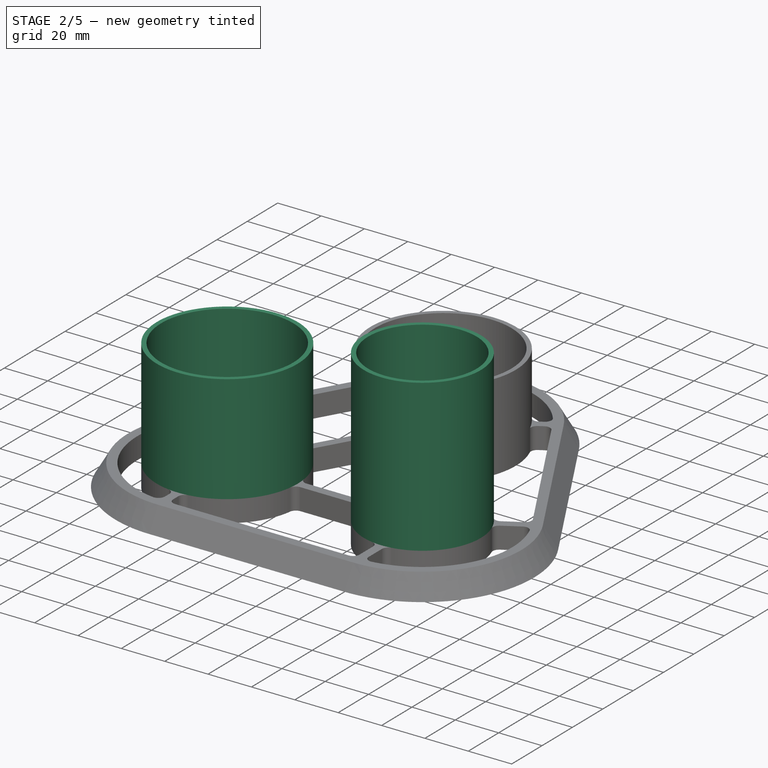
[diagram: stage 2 of 5 — iso view after this stage's code; geometry added in this stage tinted green]
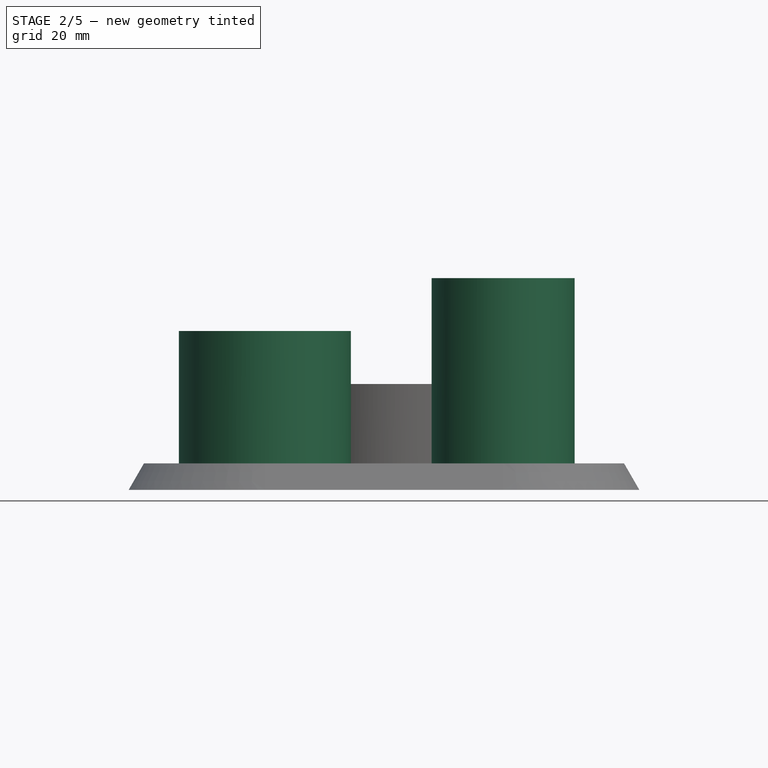
[diagram: stage 2 of 5 — front view after this stage's code; geometry added in this stage tinted green]
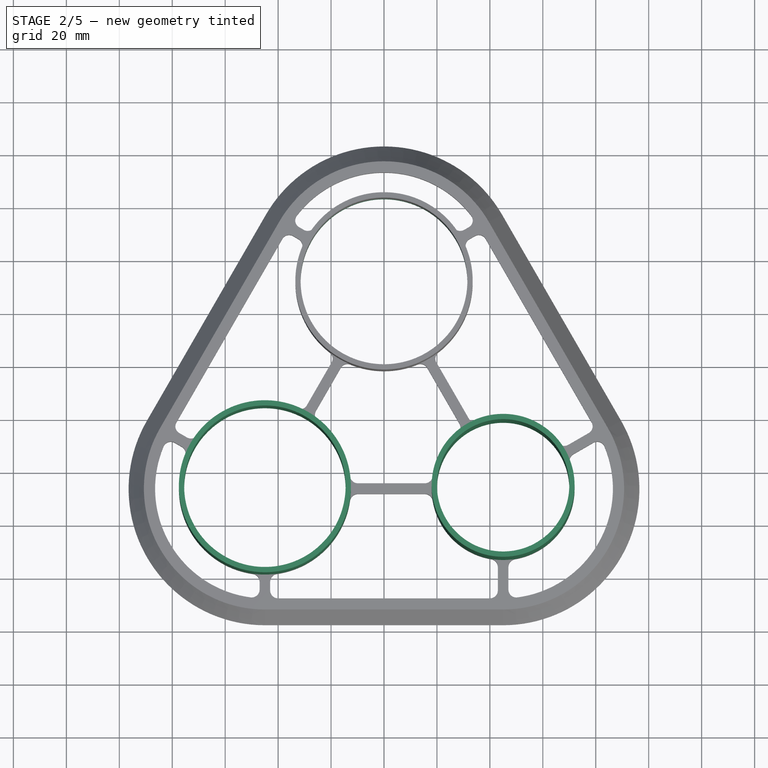
[diagram: stage 2 of 5 — top view after this stage's code; geometry added in this stage tinted green]
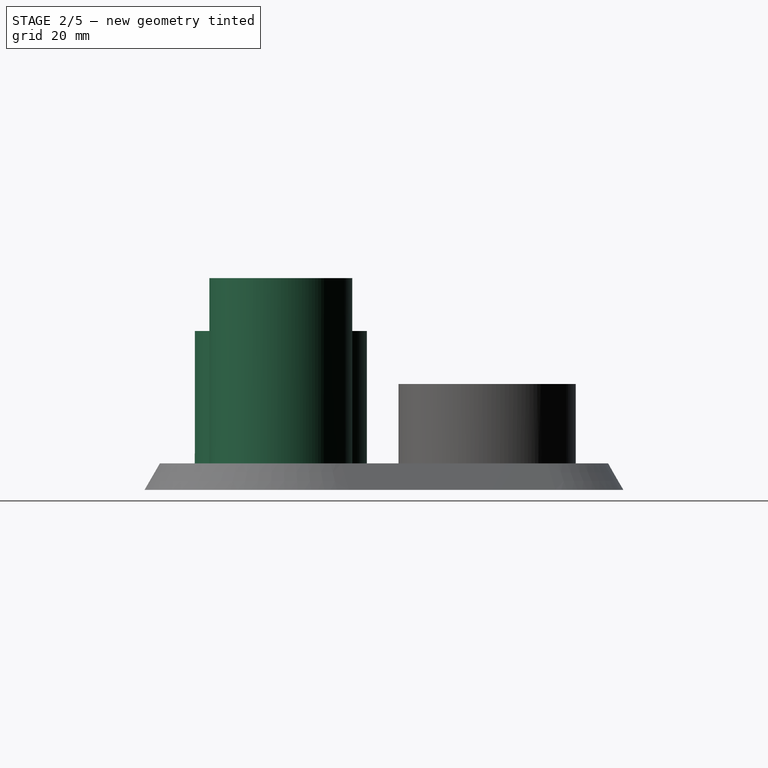
[diagram: stage 2 of 5 — right view after this stage's code; geometry added in this stage tinted green]
FEATURE [PartDesign::Pad] Pad002
  BaseFeature = -> Pad001
  Direction = (0,0,1)
  Length = 60
  Length2 = 10
  Profile = -> Sketch005
  ReferenceAxis = -> Sketch005 [N_Axis]
  Suppressed = false
  Type = 0
  expr: Length = VarSet.h2
FEATURE [PartDesign::Pad] Pad003
  BaseFeature = -> Pad002
  Direction = (0,0,1)
  Length = 80
  Length2 = 10
  Profile = -> Sketch006
  ReferenceAxis = -> Sketch006 [N_Axis]
  Suppressed = false
  Type = 0
  expr: Length = VarSet.h3
FEATURE [PartDesign::Pocket] Pocket001
  BaseFeature = -> Pad003
  Direction = (0,0,-1)
  Length = 5
  Length2 = 5
  Profile = -> Pad003 [Face105,Face106,Face104]
  Suppressed = false
  Type = 1
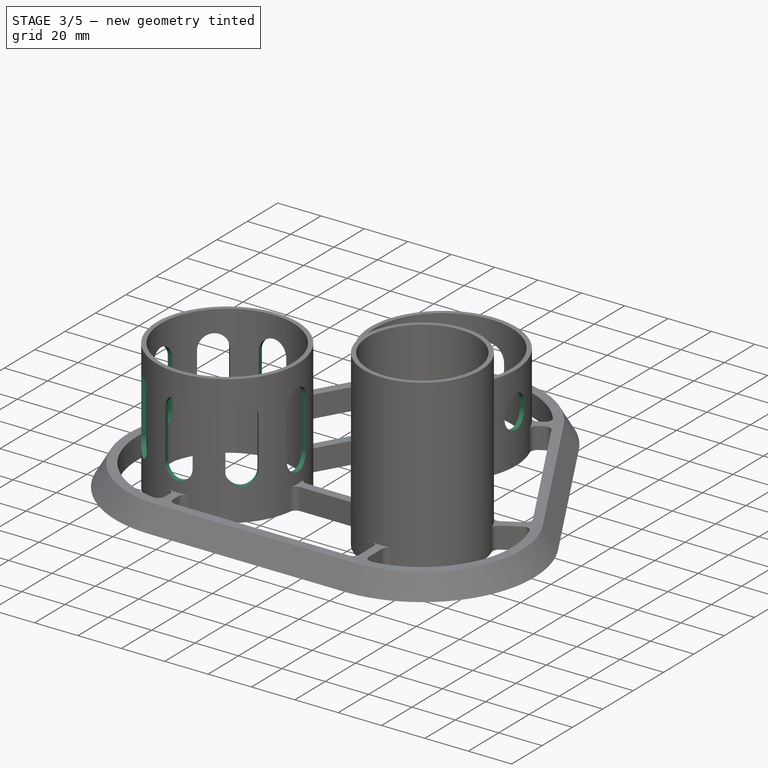
[diagram: stage 3 of 5 — iso view after this stage's code; geometry added in this stage tinted green]
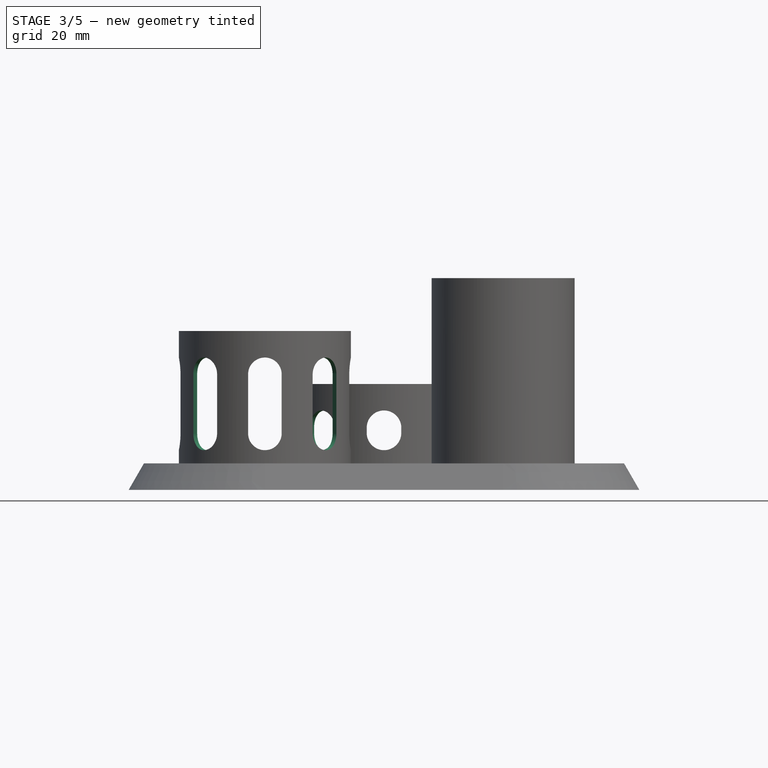
[diagram: stage 3 of 5 — front view after this stage's code; geometry added in this stage tinted green]
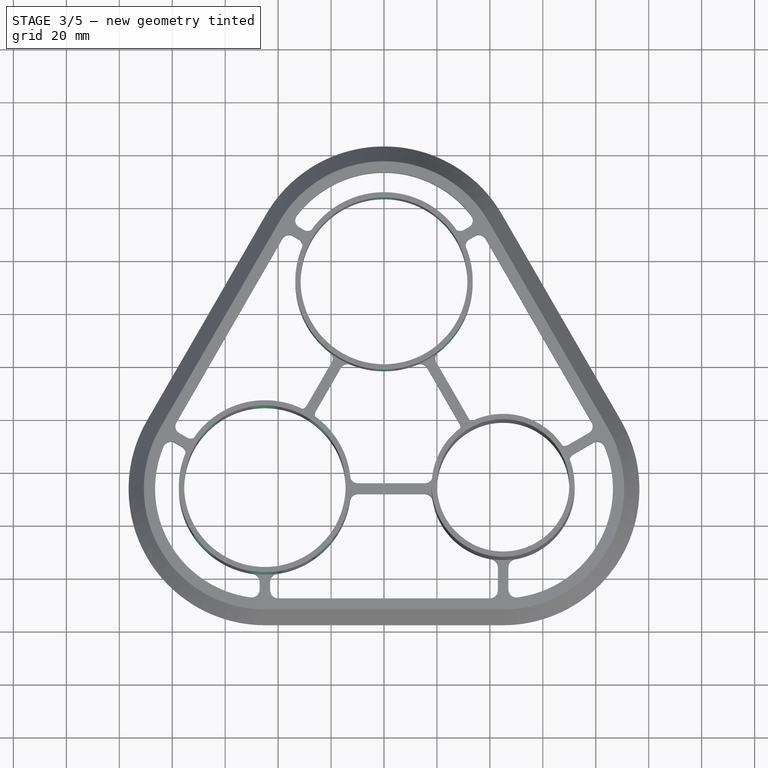
[diagram: stage 3 of 5 — top view after this stage's code; geometry added in this stage tinted green]
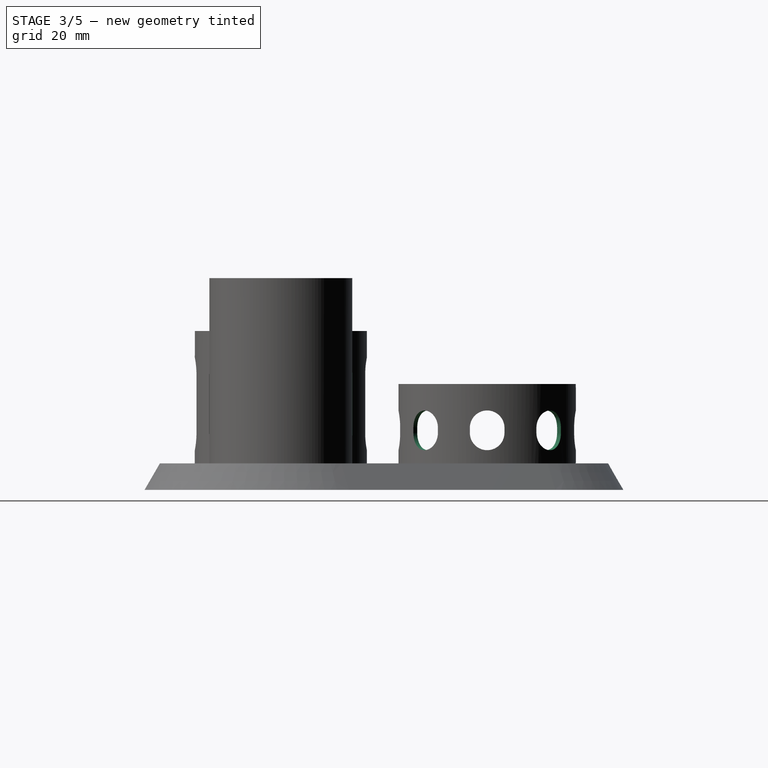
[diagram: stage 3 of 5 — right view after this stage's code; geometry added in this stage tinted green]
FEATURE [Part::Part2DObjectPython] Clone2D007  label="Sketch026 (2D)"  # Draft 2D object (typed FeaturePython)
  AttachmentSupport = -> [Binder,Z_Axis001,X_Axis001]
  Fuse = false
  MapMode = 51
  Objects = -> [Sketch026]
  Placement = pos=(33.5,51.9615,0) rot=(0.57735,0.57735,0.57735;2.0944rad)
  Scale = (1,1,1)
FEATURE [PartDesign::Pocket] Pocket002
  BaseFeature = -> Pocket001
  Direction = (-1,0,0)
  Length = 5
  Length2 = 5
  Profile = -> Clone2D007
  ReferenceAxis = -> Clone2D007 [N_Axis]
  Suppressed = false
  Type = 0
FEATURE [PartDesign::PolarPattern] PolarPattern
  Angle = 360
  Axis = -> Binder [Edge1]
  BaseFeature = -> Pocket002
  Mode = 0
  Occurrences = 8
  Offset = 120
  Originals = -> [Pocket002]
  Suppressed = false
  TransformMode = 0
FEATURE [PartDesign::Pocket] Pocket003
  BaseFeature = -> PolarPattern
  Direction = (-1,0,0)
  Length = 5
  Length2 = 5
  Profile = -> Clone2D008
  ReferenceAxis = -> Clone2D008 [N_Axis]
  Suppressed = false
  Type = 0
FEATURE [PartDesign::PolarPattern] PolarPattern001
  Angle = 360
  Axis = -> Binder001 [Edge1]
  BaseFeature = -> Pocket003
  Mode = 0
  Occurrences = 8
  Offset = 120
  Originals = -> [Pocket003]
  Suppressed = false
  TransformMode = 0
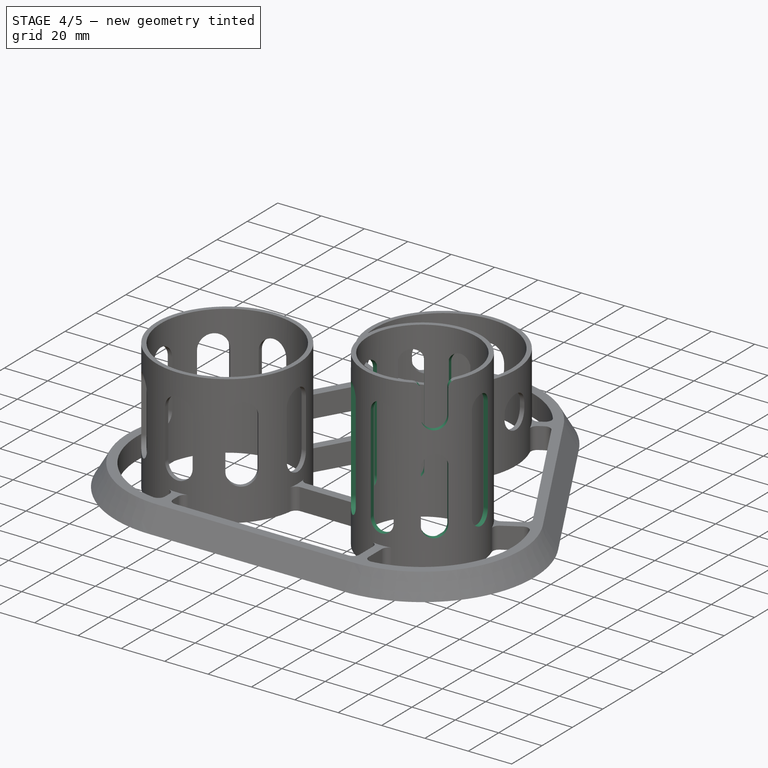
[diagram: stage 4 of 5 — iso view after this stage's code; geometry added in this stage tinted green]
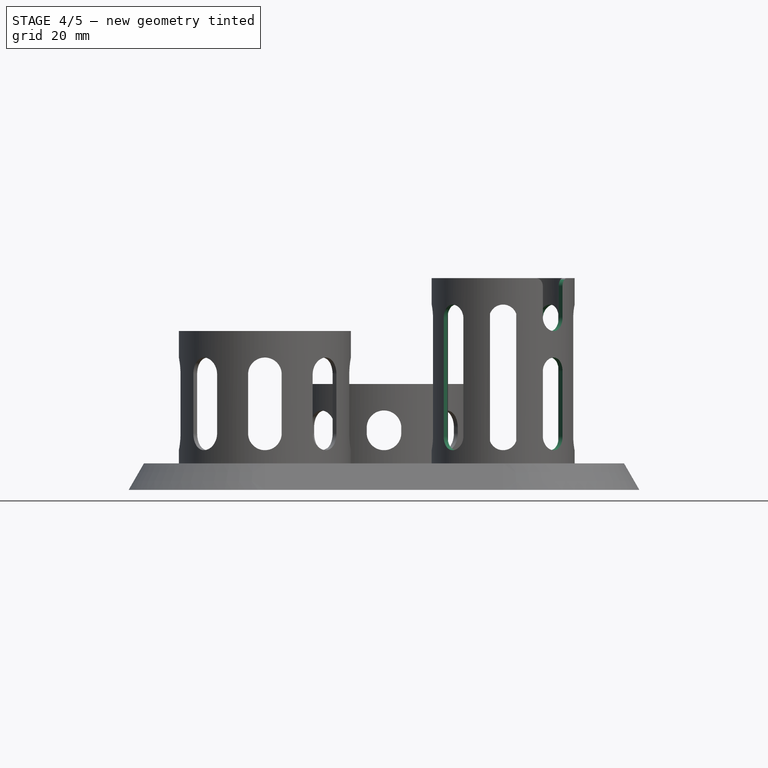
[diagram: stage 4 of 5 — front view after this stage's code; geometry added in this stage tinted green]
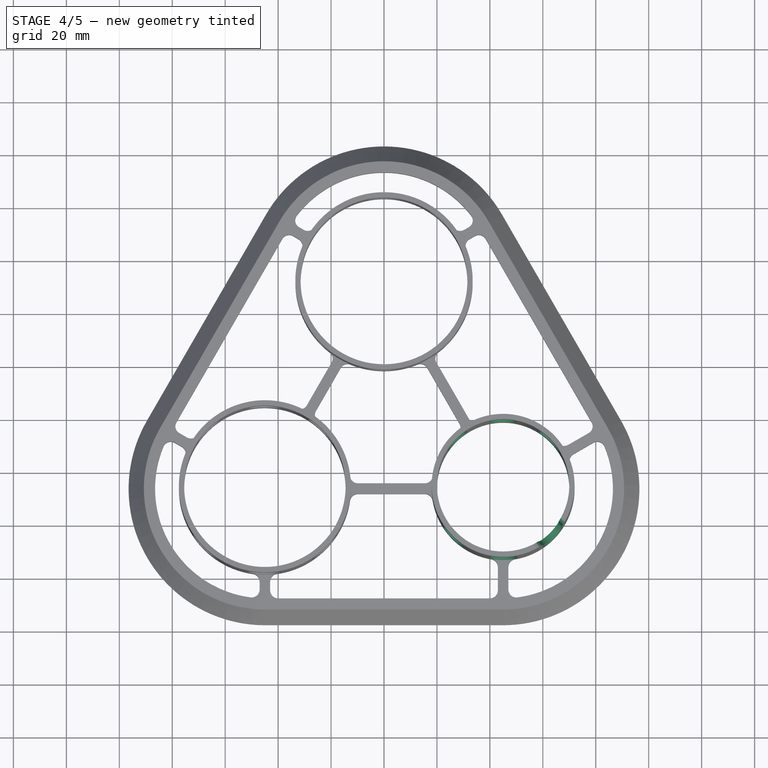
[diagram: stage 4 of 5 — top view after this stage's code; geometry added in this stage tinted green]
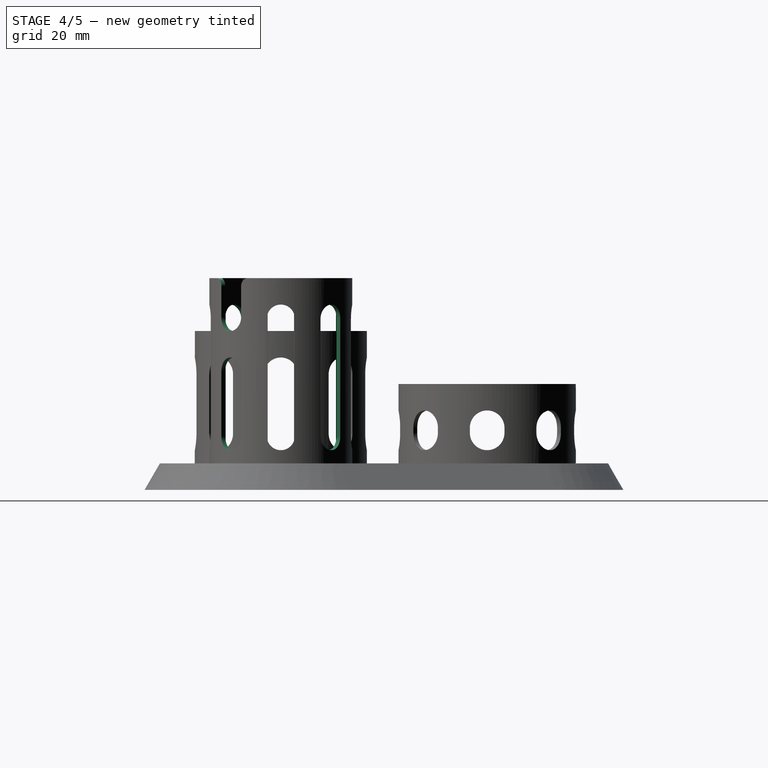
[diagram: stage 4 of 5 — right view after this stage's code; geometry added in this stage tinted green]
FEATURE [PartDesign::Pocket] Pocket004
  BaseFeature = -> PolarPattern001
  Direction = (-1,1e-16,-1e-16)
  Length = 5
  Length2 = 5
  Profile = -> Clone2D009
  ReferenceAxis = -> Clone2D009 [N_Axis]
  Suppressed = false
  Type = 0
FEATURE [PartDesign::PolarPattern] PolarPattern002
  Angle = 315
  Axis = -> Binder002 [Edge1]
  BaseFeature = -> Pocket004
  Mode = 1
  Occurrences = 7
  Offset = 45
  Originals = -> [Pocket004]
  Suppressed = false
  TransformMode = 0
FEATURE [Sketcher::SketchObject] Sketch031
  ArcFitTolerance = 1e-06
  AttachmentSupport = -> [XY_Plane001]
  ExternalGeometry = -> [Binder002]
  FullyConstrained = true
  MakeInternals = false
  MapMode = 5
  sketch-geometry (1):
    g0: LineSegment StartX=45 StartY=-25.9808 StartZ=0 EndX=64.0919 EndY=-45.0726 EndZ=0
  constraints (3):
    c: Coincident(g0,g-3)
    c: PointOnObject(g0,g-3)
    c: Angle(g0,g-1) = 0.785398
FEATURE [Sketcher::SketchObject] Sketch032
  ArcFitTolerance = 1e-06
  AttachmentSupport = -> [XY_Plane001]
  ExternalGeometry = -> [Binder002]
  FullyConstrained = true
  MakeInternals = false
  MapMode = 5
  expr: Constraints[64] = VarSet.BaseHeight + VarSet.HoleMarginBottom
  expr: Constraints[65] = VarSet.h3 - VarSet.HoleMarginTop - 20
  expr: Constraints[72] = VarSet.HoleMarginTop
  expr: Constraints[73] = VarSet.h3
  sketch-geometry (35):
    g0: LineSegment [constr] StartX=60.0004 StartY=-48.4304 StartZ=0 EndX=67.4497 EndY=-40.9812 EndZ=0
    g1: LineSegment [constr] StartX=67.4497 StartY=-40.9812 StartZ=0 EndX=71.4812 EndY=-31.2482 EndZ=0
    g2: LineSegment [constr] StartX=71.4812 StartY=-31.2482 StartZ=0 EndX=71.4812 EndY=-20.7133 EndZ=0
    g3: LineSegment [constr] StartX=71.4812 StartY=-20.7133 StartZ=0 EndX=67.4497 EndY=-10.9804 EndZ=0
    g4: LineSegment [constr] StartX=67.4497 StartY=-10.9804 StartZ=0 EndX=60.0004 EndY=-3.53108 EndZ=0
    g5: LineSegment [constr] StartX=60.0004 StartY=-3.53108 StartZ=0 EndX=50.2674 EndY=0.50044 EndZ=0
    g6: LineSegment [constr] StartX=50.2674 StartY=0.50044 StartZ=0 EndX=39.7326 EndY=0.50044 EndZ=0
    g7: LineSegment [constr] StartX=39.7326 StartY=0.50044 StartZ=0 EndX=29.9996 EndY=-3.53108 EndZ=0
    g8: LineSegment [constr] StartX=29.9996 StartY=-3.53108 StartZ=0 EndX=22.5503 EndY=-10.9804 EndZ=0
    g9: LineSegment [constr] StartX=22.5503 StartY=-10.9804 StartZ=0 EndX=18.5188 EndY=-20.7133 EndZ=0
    g10: LineSegment [constr] StartX=18.5188 StartY=-20.7133 StartZ=0 EndX=18.5188 EndY=-31.2482 EndZ=0
    g11: LineSegment [constr] StartX=18.5188 StartY=-31.2482 StartZ=0 EndX=22.5503 EndY=-40.9812 EndZ=0
    g12: LineSegment [constr] StartX=22.5503 StartY=-40.9812 StartZ=0 EndX=29.9996 EndY=-48.4304 EndZ=0
    g13: LineSegment [constr] StartX=29.9996 StartY=-48.4304 StartZ=0 EndX=39.7326 EndY=-52.462 EndZ=0
    g14: LineSegment [constr] StartX=39.7326 StartY=-52.462 StartZ=0 EndX=50.2674 EndY=-52.462 EndZ=0
    g15: LineSegment [constr] StartX=50.2674 StartY=-52.462 StartZ=0 EndX=60.0004 EndY=-48.4304 EndZ=0
    g16: Circle [constr] CenterX=45 CenterY=-25.9808 CenterZ=0 NormalX=0 NormalY=0 NormalZ=1 AngleXU=0 Radius=27
    g17: ArcOfCircle CenterX=0 CenterY=44.7326 CenterZ=0 NormalX=0 NormalY=0 NormalZ=1 AngleXU=0 Radius=5.26744 StartAngle=4e-16 EndAngle=3.14159
    g18: ArcOfCircle CenterX=0 CenterY=20.2674 CenterZ=0 NormalX=0 NormalY=0 NormalZ=1 AngleXU=0 Radius=5.26744 StartAngle=3.14159 EndAngle=6.28319
    g19: LineSegment StartX=5.26744 StartY=44.7326 StartZ=0 EndX=5.26744 EndY=20.2674 EndZ=0
    g20: LineSegment StartX=-5.26744 StartY=44.7326 StartZ=0 EndX=-5.26744 EndY=20.2674 EndZ=0
    g21: LineSegment [constr] StartX=-5.26744 StartY=20.2674 StartZ=0 EndX=5.26744 EndY=20.2674 EndZ=0
    g22: GeomPoint [constr] X=0 Y=50 Z=0
    g23: GeomPoint [constr] X=0 Y=15 Z=0
    g24: ArcOfCircle CenterX=0 CenterY=65.2674 CenterZ=0 NormalX=0 NormalY=0 NormalZ=1 AngleXU=0 Radius=5.26744 StartAngle=3.14159 EndAngle=6.28319
    g25: LineSegment StartX=5.26744 StartY=77 StartZ=0 EndX=5.26744 EndY=65.2674 EndZ=0
    g26: LineSegment StartX=-5.26744 StartY=77 StartZ=0 EndX=-5.26744 EndY=65.2674 EndZ=0
    g27: LineSegment [constr] StartX=-5.26744 StartY=65.2674 StartZ=0 EndX=5.26744 EndY=65.2674 EndZ=0
    g28: LineSegment StartX=-8.26744 StartY=80 StartZ=0 EndX=-12 EndY=80 EndZ=0
    g29: LineSegment StartX=8.26744 StartY=80 StartZ=0 EndX=12 EndY=80 EndZ=0
    g30: ArcOfCircle CenterX=0 CenterY=80 CenterZ=0 NormalX=0 NormalY=0 NormalZ=1 AngleXU=0 Radius=12 StartAngle=3e-15 EndAngle=3.14159
    g31: ArcOfCircle CenterX=-8.26744 CenterY=77 CenterZ=0 NormalX=0 NormalY=0 NormalZ=1 AngleXU=0 Radius=3 StartAngle=-9e-16 EndAngle=1.5708
    g32: GeomPoint [constr] X=-5.26744 Y=80 Z=0
    g33: ArcOfCircle CenterX=8.26744 CenterY=77 CenterZ=0 NormalX=0 NormalY=0 NormalZ=1 AngleXU=0 Radius=3 StartAngle=1.5708 EndAngle=3.14159
    g34: GeomPoint [constr] X=5.26744 Y=80 Z=0
  constraints (79):
    c: Coincident(g0,g1)
    c: Coincident(g1,g2)
    c: Coincident(g2,g3)
    c: Coincident(g3,g4)
    c: Coincident(g4,g5)
    c: Coincident(g5,g6)
    c: Coincident(g6,g7)
    c: Coincident(g7,g8)
    c: Coincident(g8,g9)
    c: Coincident(g9,g10)
    c: Coincident(g10,g11)
    c: Coincident(g11,g12)
    c: Coincident(g12,g13)
    c: Coincident(g13,g14)
    c: Coincident(g14,g15)
    c: Coincident(g15,g0)
    c: Equal(g0, g1-g15) x15
    c: PointOnObject(g0,g16)
    c: PointOnObject(g1,g16)
    c: PointOnObject(g2,g16)
    c: PointOnObject(g3,g16)
    c: PointOnObject(g4,g16)
    c: PointOnObject(g5,g16)
    c: PointOnObject(g6,g16)
    c: PointOnObject(g7,g16)
    c: PointOnObject(g8,g16)
    c: PointOnObject(g9,g16)
    c: PointOnObject(g10,g16)
    c: PointOnObject(g11,g16)
    c: PointOnObject(g12,g16)
    c: PointOnObject(g13,g16)
    c: PointOnObject(g14,g16)
    c: PointOnObject(g15,g16)
    c: Coincident(g16,g-3)
    c: PointOnObject(g15,g-3)
    c: Horizontal(g14)
    c: Tangent(g17,g19) = 1.5708
    c: Tangent(g17,g20) = -1.5708
    c: Tangent(g18,g19) = 1.5708
    c: Tangent(g18,g20) = -1.5708
    c: Equal(g17,g18)
    c: PointOnObject(g17,g-2)
    c: PointOnObject(g18,g-2)
    c: Coincident(g21,g18)
    c: Coincident(g21,g18)
    c: Equal(g21,g14)
    c: PointOnObject(g22,g17)
    c: PointOnObject(g23,g18)
    c: PointOnObject(g22,g-2)
    c: PointOnObject(g23,g-2)
    c: DistanceY(g-1,g23) = 15
    c: Distance(g22,g-1) = 50
    c: Tangent(g24,g25) = 1.5708
    c: Tangent(g24,g26) = -1.5708
    c: Vertical(g26)
    c: Coincident(g27,g24)
    c: Coincident(g27,g24)
    c: Equal(g21,g27)
    c: Distance(g17,g24) = 10
    c: Distance(g34,g-1) = 80
    c: PointOnObject(g24,g-2)
    c: Horizontal(g28)
    c: Horizontal(g29)
    c: PointOnObject(g30,g-2)
    c: Coincident(g30,g28)
    c: Coincident(g30,g29)
    c: Symmetric(g32,g34,g-2)
    c: PointOnObject(g30,g28)
    c: PointOnObject(g32,g28)
    c: PointOnObject(g32,g26)
    c: Tangent(g28,g31) = -1.5708
    c: Tangent(g26,g31) = 1.5708
    c: PointOnObject(g34,g25)
    c: PointOnObject(g34,g29)
    c: Tangent(g25,g33) = -1.5708
    c: Tangent(g29,g33) = 1.5708
    c: Equal(g33,g31)
    c: Radius(g31) = 3
    c: Radius(g30) = 12
FEATURE [Part::Part2DObjectPython] Clone2D010  label="Sketch032 (2D)"  # Draft 2D object (typed FeaturePython)
  AttachmentSupport = -> [Sketch031,Z_Axis001]
  Fuse = false
  MapMode = 51
  Objects = -> [Sketch032]
  Placement = pos=(64.0919,-45.0726,0) rot=(0.862856,0.357407,0.357407;1.71777rad)
  Scale = (1,1,1)
FEATURE [PartDesign::Pocket] Pocket005
  BaseFeature = -> PolarPattern002
  Direction = (-0.707107,0.707107,0)
  Length = 5
  Length2 = 5
  Profile = -> Clone2D010
  ReferenceAxis = -> Clone2D010 [N_Axis]
  Suppressed = false
  Type = 0
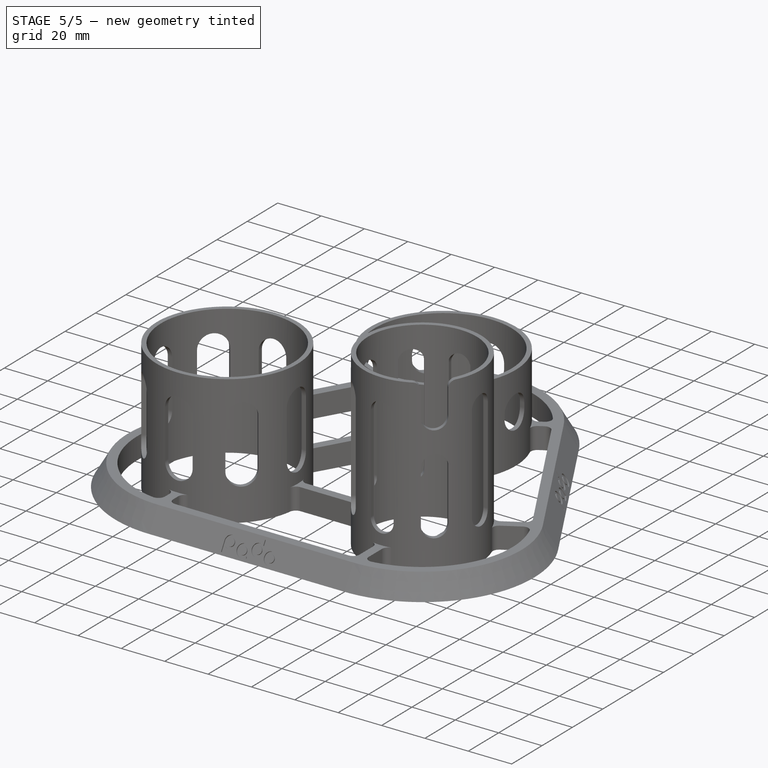
[diagram: stage 5 of 5 — iso view after this stage's code; geometry added in this stage tinted green]
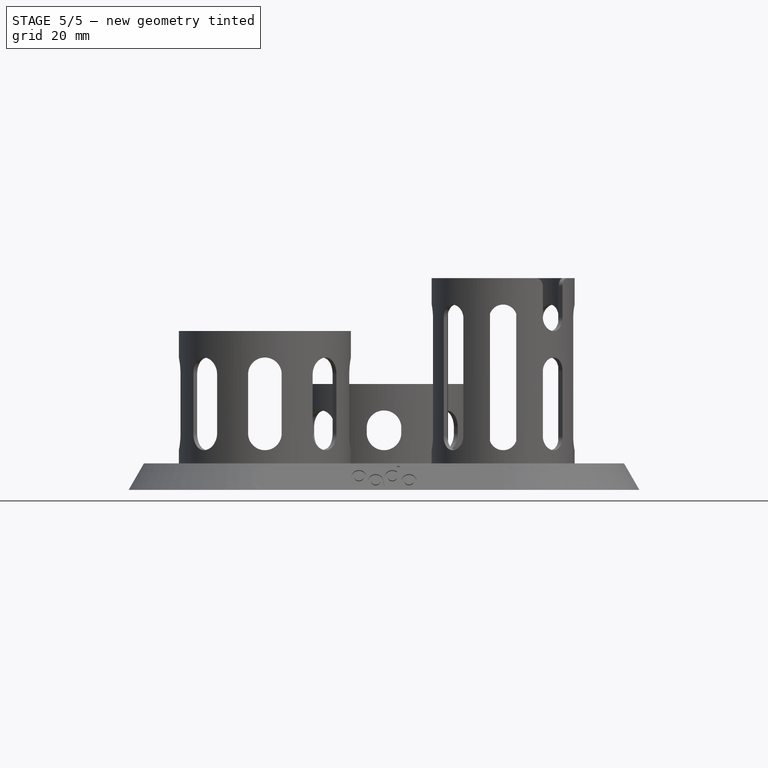
[diagram: stage 5 of 5 — front view after this stage's code; geometry added in this stage tinted green]
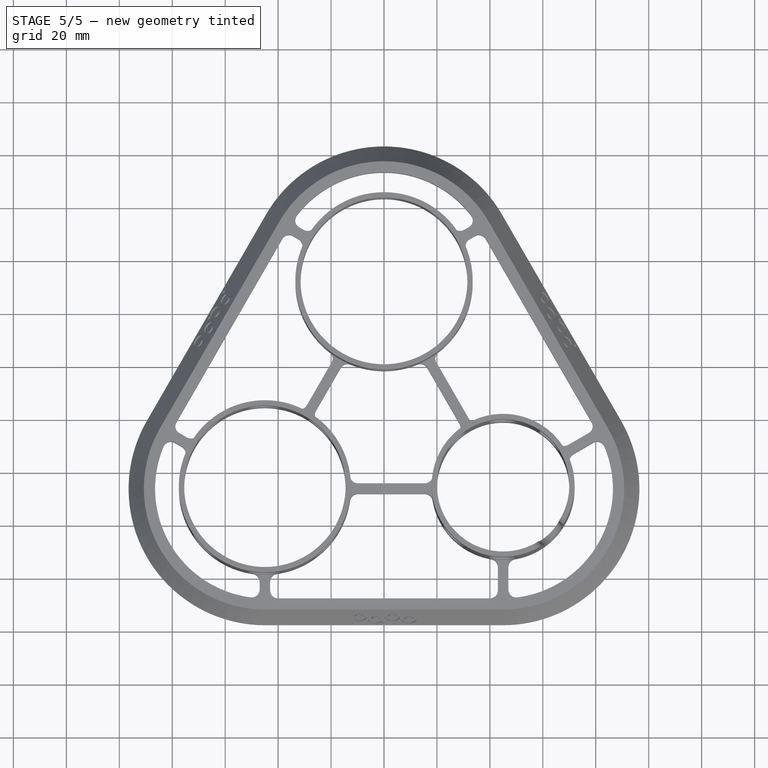
[diagram: stage 5 of 5 — top view after this stage's code; geometry added in this stage tinted green]
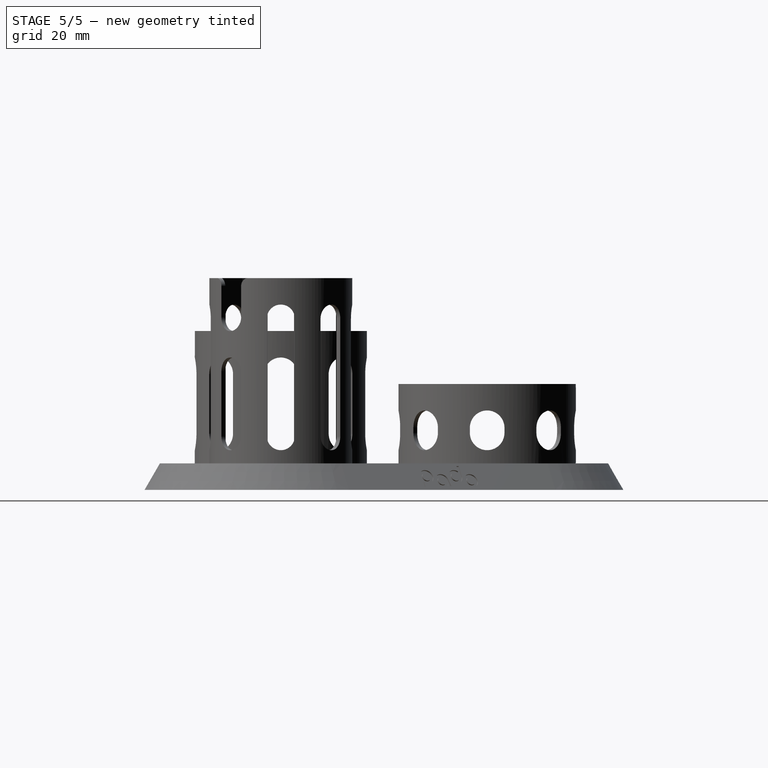
[diagram: stage 5 of 5 — right view after this stage's code; geometry added in this stage tinted green]
FEATURE [Part::Part2DObjectPython] Clone2D011  label="Sketch014 (2D)001"  # Draft 2D object (typed FeaturePython)
  AttachmentOffset = pos=(0,0,0) rot=(0,0,1;1.5708rad)
  AttachmentSupport = -> [Pad]
  Fuse = false
  MapMode = 45
  Objects = -> [Sketch014]
  Placement = pos=(-5.964e-13,-74.5761,5) rot=(1,0,0;1.0472rad)
  Scale = (0.7,0.7,0.7)
FEATURE [PartDesign::Pocket] Pocket006
  BaseFeature = -> Pocket005
  Direction = (-1e-16,0.866025,-0.5)
  Length = 0.5
  Length2 = 5
  Profile = -> Clone2D011
  ReferenceAxis = -> Clone2D011 [N_Axis]
  Suppressed = false
  Type = 0
FEATURE [PartDesign::PolarPattern] PolarPattern003
  Angle = 360
  Axis = -> Z_Axis001
  BaseFeature = -> Pocket006
  Mode = 0
  Occurrences = 3
  Offset = 120
  Originals = -> [Pocket006]
  Suppressed = false
  TransformMode = 0
FEATURE [Sketcher::SketchObject] Sketch033
  ArcFitTolerance = 1e-06
  AttachmentSupport = -> [YZ_Plane001]
  ExternalGeometry = -> [Sketch030,Sketch029]
  FullyConstrained = true
  MakeInternals = false
  MapMode = 5
  Placement = pos=(0,0,0) rot=(0.57735,0.57735,0.57735;2.0944rad)
  expr: Constraints[10] = VarSet.BaseHeight - VarSet.WallThickness
  expr: Constraints[11] = VarSet.WallThickness
  expr: Constraints[7] = VarSet.WallThickness
  sketch-geometry (4):
    g0: LineSegment StartX=-75.4629 StartY=0 StartZ=0 EndX=-70.8441 EndY=8 EndZ=0
    g1: LineSegment StartX=-70.8441 StartY=8 StartZ=0 EndX=-69.4629 EndY=8 EndZ=0
    g2: LineSegment StartX=-69.4629 StartY=8 StartZ=0 EndX=-69.4629 EndY=0 EndZ=0
    g3: LineSegment StartX=-69.4629 StartY=0 StartZ=0 EndX=-75.4629 EndY=0 EndZ=0
  constraints (12):
    c: PointOnObject(g0,g-1)
    c: Coincident(g0,g1)
    c: Coincident(g1,g2)
    c: PointOnObject(g2,g-1)
    c: Vertical(g2)
    c: Coincident(g2,g3)
    c: Coincident(g3,g0)
    c: DistanceX(g-3,g0) = 2
    c: Angle(g3,g0) = 1.0472
    c: Horizontal(g1)
    c: Distance(g0,g-1) = 8
    c: DistanceX(g2,g-4) = 2
FEATURE [PartDesign::SubtractivePipe] SubtractivePipe
  AuxilleryCurvelinear = true
  AuxillerySpineTangent = false
  BaseFeature = -> PolarPattern003
  Binormal = (0,0,0)
  Mode = 0
  Profile = -> Sketch033
  Spine = -> Sketch030
  SpineTangent = false
  Suppressed = false
  Transformation = 0
  Transition = 0
FEATURE [PartDesign::Body] Body
  AllowCompound = true
  Group = -> [Sketch,Sketch002,Binder,Binder001,Binder002,Sketch029,Sketch030,Sketch004,Sketch005,Sketch006,Clone2D007,Sketch026,Sketch027,Clone2D008,Sketch028,Clone2D009,Pad,Pocket,Pad001,Pad002,Pad003,Pocket001,Pocket002,PolarPattern,Pocket003,PolarPattern001,Pocket004,PolarPattern002,Sketch031,Sketch032,Clone2D010,Pocket005,Clone2D011,Pocket006,PolarPattern003,Sketch033,SubtractivePipe]
  Origin = -> Origin001
  Tip = -> SubtractivePipe
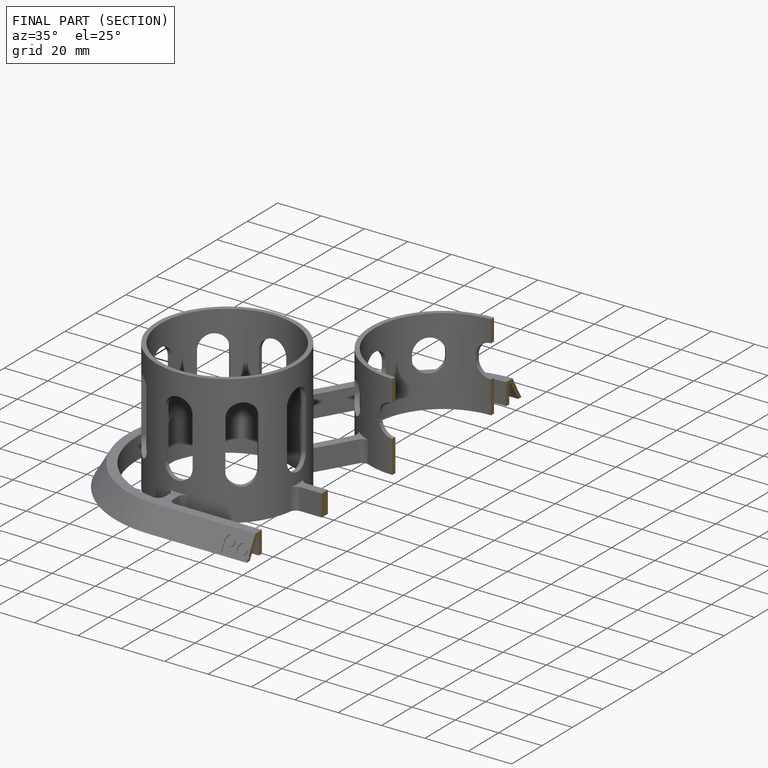
[diagram: finished part — half-section view (interior)]
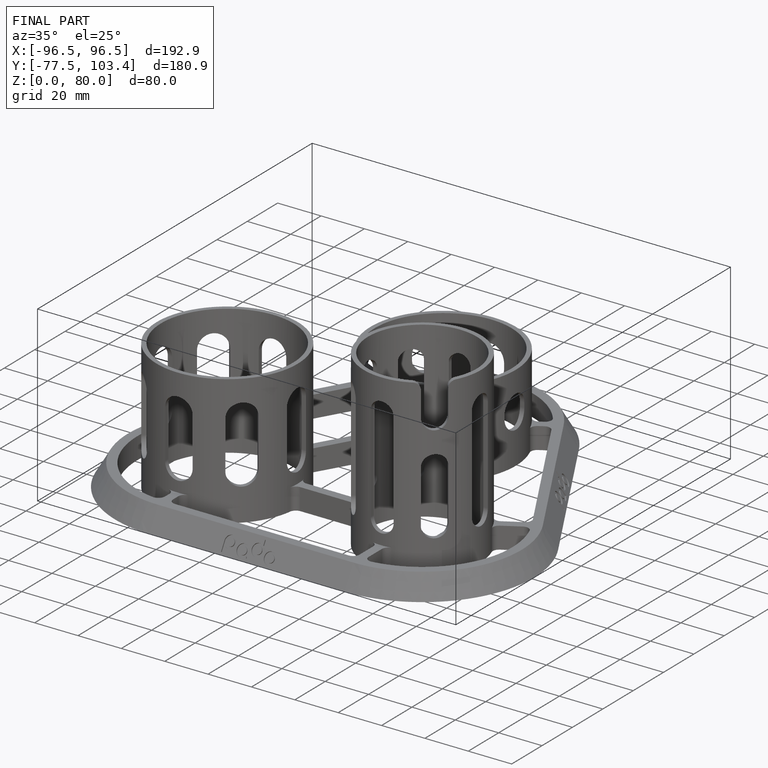
[diagram: finished part — iso view with bounding-box wireframe]
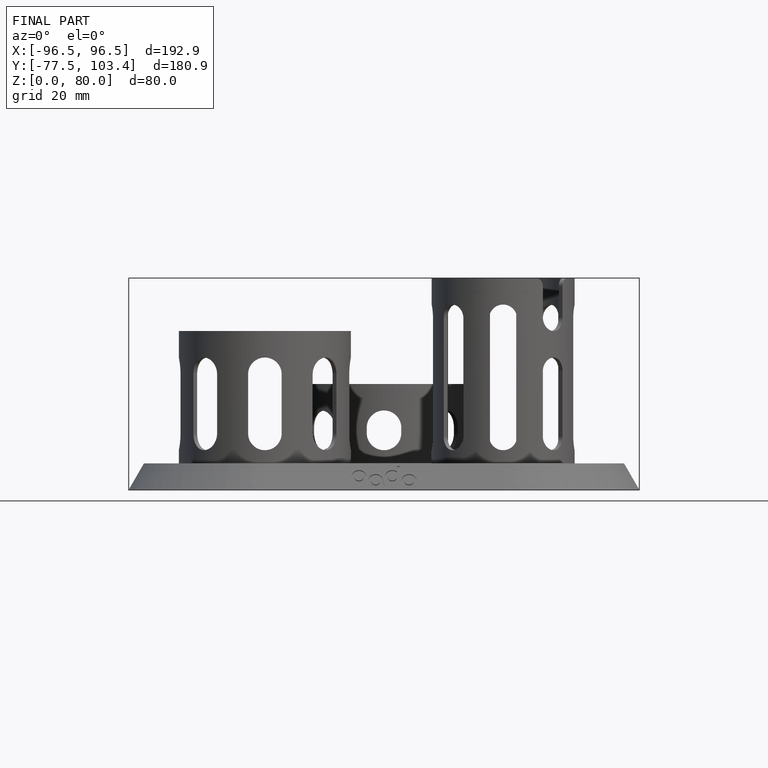
[diagram: finished part — front view with bounding-box wireframe]
